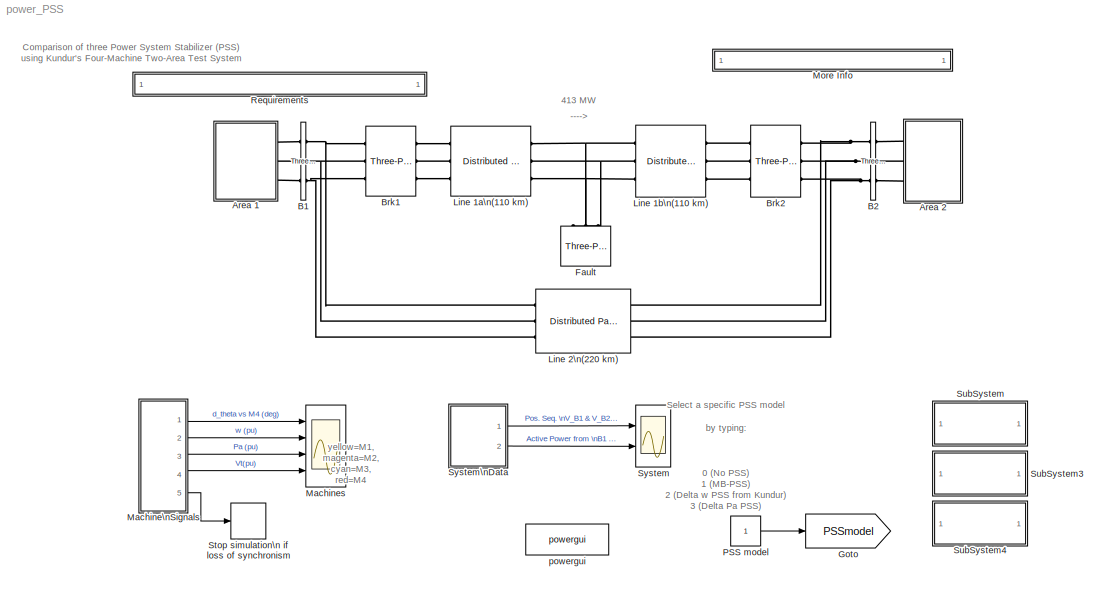
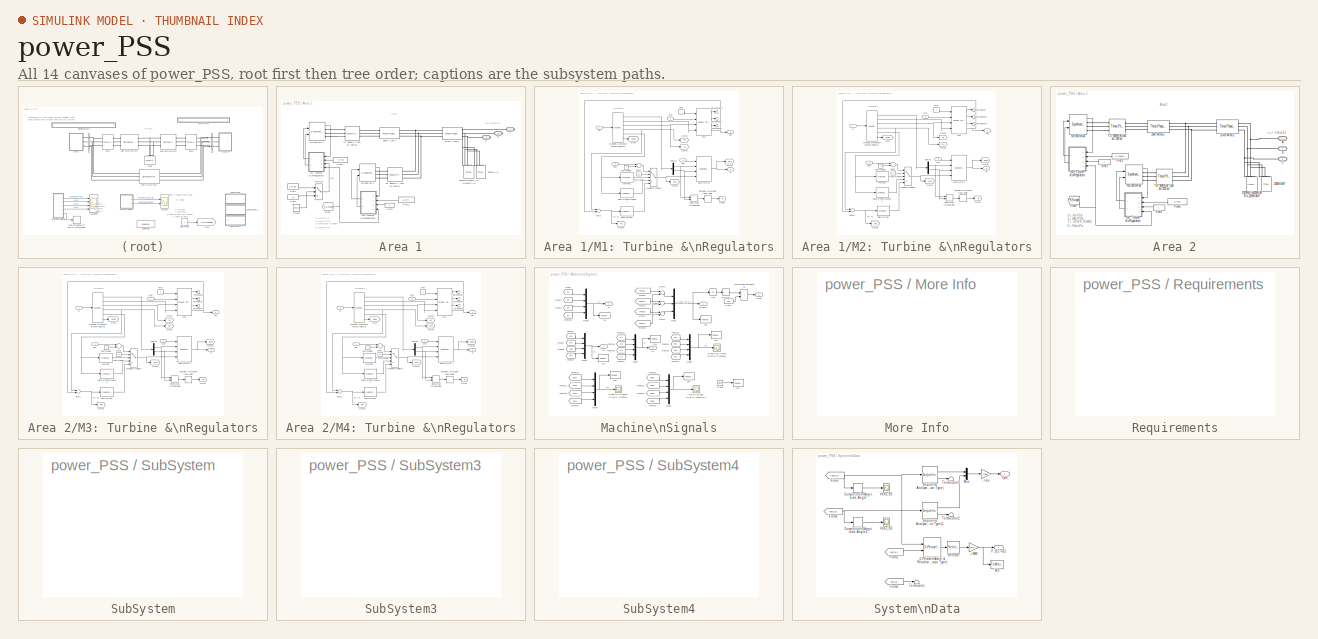
[diagram: thumbnail index - all 14 canvases of the model, root first then tree order]
MODEL power_PSS
KIND model
BLOCK [Reference]  Brk2  REF=powerlib/Elements/Three-Phase Breaker
  AttributesFormatString = \\n
  BreakerResistance = 0.001
  External = off
  InitialState = closed
  Measurements = None
  Ports = [0, 0, 0, 0, 0, 3, 3]
  ShowPortLabels = on
  SnubberCapacitance = 0
  SnubberResistance = 1e6
  SourceBlock = powerlib/Elements/Three-Phase Breaker
  SourceType = Three-Phase Breaker
  SwitchA = on
  SwitchB = on
  SwitchC = on
  SwitchTimes = [1+8/60]
BLOCK [SubSystem] Area 1
  MinAlgLoopOccurrences = off
  Ports = [0, 0, 0, 0, 0, 0, 3]
  RTWSystemCode = Auto
  TreatAsAtomicUnit = off
BLOCK [PMIOPort] Area 1/ A
  Port = 1
  Side = Right
BLOCK [PMIOPort] Area 1/ B
  Port = 2
  Side = Right
BLOCK [PMIOPort] Area 1/ C
  Port = 3
  Side = Right
BLOCK [Reference] Area 1/-200MVAR  REF=powerlib/Elements/Three-Phase\nParallel RLC Load
  ActivePower = 0
  AttributesFormatString = \\n
  CapacitivePower = 200e6
  Configuration = Y (grounded)
  InductivePower = 0
  LConnTagsString = A|B|C
  LeftPortType = p1
  Measurements = None
  NominalFrequency = 60
  NominalVoltage = 230e3
  PhysicalDomain = powersysdomain
  Ports = [0, 0, 0, 0, 0, 3]
  RightPortType = p1
  SourceBlock = powerlib/Elements/Three-Phase\nParallel RLC Load
  SourceType = Three-Phase Parallel RLC Load
  SubClassName = unknown
BLOCK [Reference] Area 1/10 km Area 1  REF=powerlib/Elements/Three-Phase\nPI Section Line
  AttributesFormatString = \\n
  Capacitances = [0.00175/529/(377) 5.2489e-9]
  Frequency = 60
  Inductances = [0.001*529/(377) 0.0061]
  LConnTagsString = a|b|c
  LeftPortType = p1
  Length = 10
  PhysicalDomain = powersysdomain
  Ports = [0, 0, 0, 0, 0, 3, 3]
  RConnTagsString = A|B|C
  Resistances = [0.0001*529 1.61]
  RightPortType = p1
  SourceBlock = powerlib/Elements/Three-Phase\nPI Section Line
  SourceType = Three-Phase PI Section Line
  SubClassName = unknown
BLOCK [Reference] Area 1/25km Area 1  REF=powerlib/Elements/Three-Phase\nPI Section Line
  AttributesFormatString = \\n
  Capacitances = [0.00175/529/(377) 5.2489e-9]
  Frequency = 60
  Inductances = [0.001*529/(377) 0.0061]
  LConnTagsString = a|b|c
  LeftPortType = p1
  Length = 25
  PhysicalDomain = powersysdomain
  Ports = [0, 0, 0, 0, 0, 3, 3]
  RConnTagsString = A|B|C
  Resistances = [0.0001*529 1.61]
  RightPortType = p1
  SourceBlock = powerlib/Elements/Three-Phase\nPI Section Line
  SourceType = Three-Phase PI Section Line
  SubClassName = unknown
BLOCK [Reference] Area 1/967MW\n100MVAR\n-187MVAR  REF=powerlib/Elements/Three-Phase\nParallel RLC Load
  ActivePower = 967e6
  AttributesFormatString = \\n
  CapacitivePower = 187e6
  Configuration = Y (grounded)
  InductivePower = 100e6
  LConnTagsString = A|B|C
  LeftPortType = p1
  Measurements = None
  NominalFrequency = 60
  NominalVoltage = 230e3
  PhysicalDomain = powersysdomain
  Ports = [0, 0, 0, 0, 0, 3]
  RightPortType = p1
  SourceBlock = powerlib/Elements/Three-Phase\nParallel RLC Load
  SourceType = Three-Phase Parallel RLC Load
  SubClassName = unknown
BLOCK [From] Area 1/From
  CloseFcn = tagdialog Close
  DialogController = Simulink.DDGSource
  GotoTag = PSSmodel
BLOCK [Reference] Area 1/M1 900 MVA  REF=powerlib/Machines/Synchronous Machine\npu Standard
  AttributesFormatString = \\n\\n
  InitialConditions = [0 -31.4247 0.784453 0.784453 0.784453 2.7401 -117.26 122.74 1.83395]
  LoadFlowParameters = [1 700000000 0 0 0]
  Mechanical = [ 6.5 0  4]
  NominalParameters = [900E6  20000   60 ]
  Ports = [2, 1, 0, 0, 0, 0, 3]
  PresetModel = No
  Reactances1 = [1.8 .3 .25 1.7 .55 .25 .2]
  Reactances2 = [ 1.305, 0.296, 0.252, 0.474, 0.243, 0.18 ]
  RotorType = Round
  Saturation = [0.6404,0.7127,0.8441,0.9214,0.9956,1.082,1.19,1.316,1.457;0.7,0.7698,0.8872,0.9466,0.9969,1.046,1.1,1.151,1.201]
  SetSaturation = off
  ShowDetailedParameters = on
  ShowPortLabels = on
  SourceBlock = powerlib/Machines/Synchronous Machine\npu Standard
  SourceType = Synchronous Machine
  StatorResistance = 0.0025
  TimeConstants1 = []
  TimeConstants2 = [8 .03 .4 .05]
  TimeConstants3 = []
  TimeConstants4 = []
  TimeConstants5 = [ 1.01, 0.053, 0.1 ]
  TimeConstants6 = []
  TimeConstants7 = []
  TimeConstants8 = []
  Units = 0.5
  dAxisTimeConstants = Open-circuit
  qAxisTimeConstants = Open-circuit
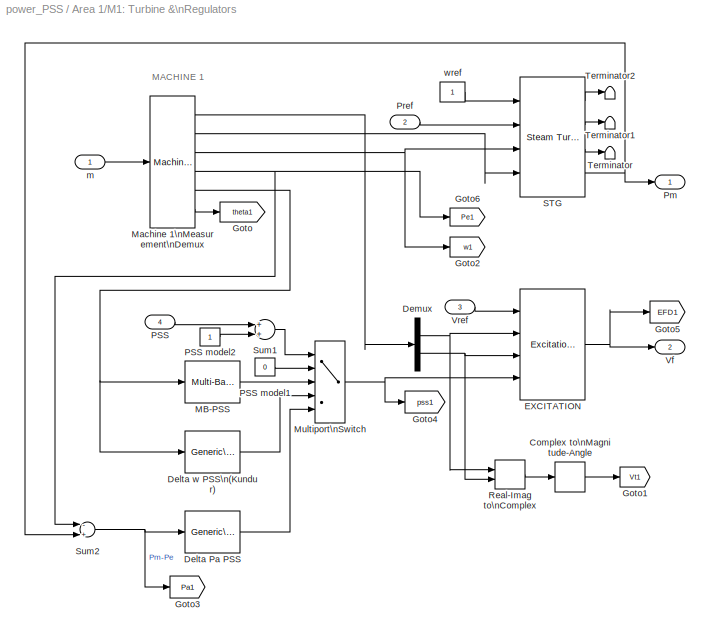
BLOCK [SubSystem] Area 1/M1: Turbine &\nRegulators
  MinAlgLoopOccurrences = off
  Ports = [4, 2]
  RTWSystemCode = Auto
  TreatAsAtomicUnit = off
BLOCK [ComplexToMagnitudeAngle] Area 1/M1: Turbine &\nRegulators/Complex to\nMagnitude-Angle
  Output = Magnitude
  Ports = [1, 1]
BLOCK [Reference] Area 1/M1: Turbine &\nRegulators/Delta Pa PSS   REF=powerlib/Machines/Generic\nPower System Stabilizer
  FreqRange = logspace(-2,2,500)
  K = 2.5*1.25
  MagdB_On = off
  Plot_On = off
  Ports = [1, 1]
  ShowPortLabels = on
  SourceBlock = powerlib/Machines/Generic\nPower System Stabilizer
  SourceType = Generic Power System Stabilizer
  Tleadlag1 = [60e-3 1]
  Tleadlag2 = [0 0]
  Tsensor = 15e-3
  Twashout = 1
  VSlimits = [-0.15 0.15]
  Vinit = 0
BLOCK [Reference] Area 1/M1: Turbine &\nRegulators/Delta w PSS\n(Kundur)   REF=powerlib/Machines/Generic\nPower System Stabilizer
  FreqRange = logspace(-2,2,500)
  K = 30
  MagdB_On = off
  Plot_On = off
  Ports = [1, 1]
  ShowPortLabels = on
  SourceBlock = powerlib/Machines/Generic\nPower System Stabilizer
  SourceType = Generic Power System Stabilizer
  Tleadlag1 = [50e-3 20e-3]
  Tleadlag2 = [3 5.4]
  Tsensor = 15e-3
  Twashout = 10
  VSlimits = [-0.15 0.15]
  Vinit = 0
BLOCK [Demux] Area 1/M1: Turbine &\nRegulators/Demux
  Outputs = 2
  Ports = [1, 2]
BLOCK [Reference] Area 1/M1: Turbine &\nRegulators/EXCITATION  REF=powerlib/Machines/Excitation\nSystem
  Ports = [4, 1]
  ShowPortLabels = on
  SourceBlock = powerlib/Machines/Excitation\nSystem
  SourceType = Excitation System
  damp = [ 0, 0 ]
  exc = [ 1, 0 ]
  lim = [ 0 , 12.3, 0 ]
  reg = [ 200, 0.001 ]
  sat = [ 0, 0 ]
  tgr = [ 0, 0 ]
  tr = 20e-3
  v0 = [1,1.83395]
BLOCK [Goto] Area 1/M1: Turbine &\nRegulators/Goto
  DialogController = Simulink.DDGSource
  GotoTag = theta1
  TagVisibility = global
BLOCK [Goto] Area 1/M1: Turbine &\nRegulators/Goto1
  DialogController = Simulink.DDGSource
  GotoTag = Vt1
  TagVisibility = global
BLOCK [Goto] Area 1/M1: Turbine &\nRegulators/Goto2
  DialogController = Simulink.DDGSource
  GotoTag = w1
  TagVisibility = global
BLOCK [Goto] Area 1/M1: Turbine &\nRegulators/Goto3
  DialogController = Simulink.DDGSource
  GotoTag = Pa1
  TagVisibility = global
BLOCK [Goto] Area 1/M1: Turbine &\nRegulators/Goto4
  DialogController = Simulink.DDGSource
  GotoTag = pss1
  TagVisibility = global
BLOCK [Goto] Area 1/M1: Turbine &\nRegulators/Goto5
  DialogController = Simulink.DDGSource
  GotoTag = EFD1
  TagVisibility = global
BLOCK [Goto] Area 1/M1: Turbine &\nRegulators/Goto6
  DialogController = Simulink.DDGSource
  GotoTag = Pe1
  TagVisibility = global
BLOCK [Reference] Area 1/M1: Turbine &\nRegulators/MB-PSS   REF=powerlib/Machines/Multi-Band\nPower System Stabilizer
  FreqRange = logspace(-2,2,500)
  GH = [12.0 160]
  GHd = [66 66 233]
  GI = [1.25 40]
  GId = [66 66 47.6]
  GL = [0.2 30]
  GLd = [66 66 9.4]
  Kg = 1.0
  LIM = [.075 .15 .15 .15]
  MagdB_On = off
  OperationMode = Simplified settings
  Plot_On = off
  Ports = [1, 1]
  ShowPortLabels = on
  SourceBlock = powerlib/Machines/Multi-Band\nPower System Stabilizer
  SourceType = Multi-Band Power System Stabilizer
  TcHF = [0.01 0.012 0 0 0 0  0.012 0.0144 0 0 0 0 1 1]
  TcIF = [1 1 0.25 0.3 0 0 1 1 0.3 0.36 0 0 0 0]
  TcLF = [1.667 2 0 0 0 0 2 2.4 0 0 0 0 1 1]
BLOCK [Reference] Area 1/M1: Turbine &\nRegulators/Machine 1\nMeasurement\nDemux  REF=powerlib/Machines/Machines\nMeasurement\nDemux
  Ports = [1, 6]
  ShowPortLabels = on
  SourceBlock = powerlib/Machines/Machines\nMeasurement\nDemux
  SourceType = Machine measurements
  asm1 = on
  asm10 = on
  asm11 = on
  asm2 = on
  asm3 = on
  asm4 = on
  asm5 = on
  asm6 = on
  asm7 = on
  asm8 = on
  asm9 = on
  lastType = 2
  machType = Synchronous
  pmsm1 = on
  pmsm2 = on
  pmsm3 = on
  pmsm4 = on
  pmsm5 = on
  pmsm6 = on
  sm1 = off
  sm10 = on
  sm11 = on
  sm115 = off
  sm12 = off
  sm13 = off
  sm14 = off
  sm2 = off
  sm3 = off
  sm4 = off
  sm5 = off
  sm6 = on
  sm7 = on
  sm8 = on
  sm9 = on
  ssm1 = on
  ssm2 = on
  ssm3 = on
  ssm4 = on
  ssm5 = on
  ssm6 = on
BLOCK [MultiPortSwitch] Area 1/M1: Turbine &\nRegulators/Multiport\nSwitch
  Ports = [5, 1]
  SaturateOnIntegerOverflow = off
BLOCK [Inport] Area 1/M1: Turbine &\nRegulators/PSS
  IconDisplay = Port number
  LatchInput = off
  Port = 4
BLOCK [Constant] Area 1/M1: Turbine &\nRegulators/PSS model1
  Value = 0
BLOCK [Constant] Area 1/M1: Turbine &\nRegulators/PSS model2
BLOCK [Outport] Area 1/M1: Turbine &\nRegulators/Pm
  IconDisplay = Port number
  InitialOutput = 0
BLOCK [Inport] Area 1/M1: Turbine &\nRegulators/Pref
  IconDisplay = Port number
  LatchInput = off
  Port = 2
BLOCK [RealImagToComplex] Area 1/M1: Turbine &\nRegulators/Real-Imag to\nComplex
  Input = Real and imag
  Ports = [2, 1]
BLOCK [Reference] Area 1/M1: Turbine &\nRegulators/STG  REF=powerlib/Machines/Steam Turbine\nand Governor
  DA = [ 0.0115  0.3575  0.3663   0.0137  ]
  HA = [ 0.046  1.430  1.465   0.192 ]
  KA = [ 90.44  53.88  64.59   62.94  ]
  Ports = [4, 4]
  ShowPortLabels = on
  SourceBlock = powerlib/Machines/Steam Turbine\nand Governor
  SourceType = Steam Turbine and Governor
  gentype = Tandem-compound (single mass)
  ini1 = 0.7778
  ini2 = [0.779316,-31.4247]
  reg1 = [ 1  0.05    0 ]
  reg2 = [ 0.001  0.15 ]
  reg3 = [ -0.1  0.1  0  4.496 ]
  turb1 = [ 0  10   3.3   0.5   ]
  turb2 = [   0   0.36    0.36   0.28   ]
BLOCK [Sum] Area 1/M1: Turbine &\nRegulators/Sum1
  Ports = [2, 1]
BLOCK [Sum] Area 1/M1: Turbine &\nRegulators/Sum2
  Inputs = -+
  Ports = [2, 1]
BLOCK [Terminator] Area 1/M1: Turbine &\nRegulators/Terminator
BLOCK [Terminator] Area 1/M1: Turbine &\nRegulators/Terminator1
BLOCK [Terminator] Area 1/M1: Turbine &\nRegulators/Terminator2
BLOCK [Outport] Area 1/M1: Turbine &\nRegulators/Vf
  IconDisplay = Port number
  InitialOutput = 0
  Port = 2
BLOCK [Inport] Area 1/M1: Turbine &\nRegulators/Vref
  IconDisplay = Port number
  LatchInput = off
  Port = 3
BLOCK [Inport] Area 1/M1: Turbine &\nRegulators/m
  IconDisplay = Port number
  LatchInput = off
  Port = 1
BLOCK [Constant] Area 1/M1: Turbine &\nRegulators/wref
BLOCK [Reference] Area 1/M2 900 MVA  REF=powerlib/Machines/Synchronous Machine\npu Standard
  AttributesFormatString = \\n\\n
  InitialConditions = [0 -42.8075 0.788608 0.788608 0.788608 -9.54571 -129.546 110.454 1.86756]
  LoadFlowParameters = [2 700000000 0 0 0]
  Mechanical = [ 6.5 0  4]
  NominalParameters = [900E6  20000   60 ]
  Ports = [2, 1, 0, 0, 0, 0, 3]
  PresetModel = No
  Reactances1 = [1.8 .3 .25 1.7 .55 .25 .2]
  Reactances2 = [ 1.305, 0.296, 0.252, 0.474, 0.243, 0.18 ]
  RotorType = Round
  Saturation = [0.6404,0.7127,0.8441,0.9214,0.9956,1.082,1.19,1.316,1.457;0.7,0.7698,0.8872,0.9466,0.9969,1.046,1.1,1.151,1.201]
  SetSaturation = off
  ShowDetailedParameters = on
  ShowPortLabels = on
  SourceBlock = powerlib/Machines/Synchronous Machine\npu Standard
  SourceType = Synchronous Machine
  StatorResistance = 0.0025
  TimeConstants1 = []
  TimeConstants2 = [8 .03 .4 .05]
  TimeConstants3 = []
  TimeConstants4 = []
  TimeConstants5 = [ 1.01, 0.053, 0.1 ]
  TimeConstants6 = []
  TimeConstants7 = []
  TimeConstants8 = []
  Units = 0.5
  dAxisTimeConstants = Open-circuit
  qAxisTimeConstants = Open-circuit
BLOCK [SubSystem] Area 1/M2: Turbine &\nRegulators
  MinAlgLoopOccurrences = off
  Ports = [4, 2]
  RTWSystemCode = Auto
  TreatAsAtomicUnit = off
BLOCK [ComplexToMagnitudeAngle] Area 1/M2: Turbine &\nRegulators/Complex to\nMagnitude-Angle
  Output = Magnitude
  Ports = [1, 1]
BLOCK [Reference] Area 1/M2: Turbine &\nRegulators/Delta Pa PSS   REF=powerlib/Machines/Generic\nPower System Stabilizer
  FreqRange = logspace(-2,2,500)
  K = 2.5*1.25
  MagdB_On = on
  Plot_On = off
  Ports = [1, 1]
  ShowPortLabels = on
  SourceBlock = powerlib/Machines/Generic\nPower System Stabilizer
  SourceType = Generic Power System Stabilizer
  Tleadlag1 = [60e-3 1]
  Tleadlag2 = [0 0]
  Tsensor = 15e-3
  Twashout = 1
  VSlimits = [-0.15 0.15]
  Vinit = 0
BLOCK [Reference] Area 1/M2: Turbine &\nRegulators/Delta w PSS\n(Kundur)   REF=powerlib/Machines/Generic\nPower System Stabilizer
  FreqRange = logspace(-2,2,500)
  K = 30
  MagdB_On = on
  Plot_On = off
  Ports = [1, 1]
  ShowPortLabels = on
  SourceBlock = powerlib/Machines/Generic\nPower System Stabilizer
  SourceType = Generic Power System Stabilizer
  Tleadlag1 = [50e-3 20e-3]
  Tleadlag2 = [3 5.4]
  Tsensor = 15e-3
  Twashout = 10
  VSlimits = [-0.15 0.15]
  Vinit = 0
BLOCK [Demux] Area 1/M2: Turbine &\nRegulators/Demux
  Outputs = 2
  Ports = [1, 2]
BLOCK [Reference] Area 1/M2: Turbine &\nRegulators/EXCITATION  REF=powerlib/Machines/Excitation\nSystem
  Ports = [4, 1]
  ShowPortLabels = on
  SourceBlock = powerlib/Machines/Excitation\nSystem
  SourceType = Excitation System
  damp = [ 0, 0 ]
  exc = [ 1, 0 ]
  lim = [ 0 , 12.3, 0 ]
  reg = [ 200, 0.001 ]
  sat = [ 0, 0 ]
  tgr = [ 0, 0 ]
  tr = 20e-3
  v0 = [1,1.86756]
BLOCK [Goto] Area 1/M2: Turbine &\nRegulators/Goto
  DialogController = Simulink.DDGSource
  GotoTag = theta2
  TagVisibility = global
BLOCK [Goto] Area 1/M2: Turbine &\nRegulators/Goto1
  DialogController = Simulink.DDGSource
  GotoTag = Vt2
  TagVisibility = global
BLOCK [Goto] Area 1/M2: Turbine &\nRegulators/Goto2
  DialogController = Simulink.DDGSource
  GotoTag = w2
  TagVisibility = global
BLOCK [Goto] Area 1/M2: Turbine &\nRegulators/Goto3
  DialogController = Simulink.DDGSource
  GotoTag = Pa2
  TagVisibility = global
BLOCK [Goto] Area 1/M2: Turbine &\nRegulators/Goto4
  DialogController = Simulink.DDGSource
  GotoTag = pss2
  TagVisibility = global
BLOCK [Goto] Area 1/M2: Turbine &\nRegulators/Goto5
  DialogController = Simulink.DDGSource
  GotoTag = EFD2
  TagVisibility = global
BLOCK [Goto] Area 1/M2: Turbine &\nRegulators/Goto6
  DialogController = Simulink.DDGSource
  GotoTag = Pe2
  TagVisibility = global
BLOCK [Reference] Area 1/M2: Turbine &\nRegulators/MB-PSS   REF=powerlib/Machines/Multi-Band\nPower System Stabilizer
  FreqRange = logspace(-2,2,500)
  GH = [12.0 160]
  GHd = [66 66 233]
  GI = [1.25 40]
  GId = [66 66 47.6]
  GL = [0.2 30]
  GLd = [66 66 9.4]
  Kg = 1.0
  LIM = [.075 .15 .15 .15]
  MagdB_On = off
  OperationMode = Simplified settings
  Plot_On = off
  Ports = [1, 1]
  ShowPortLabels = on
  SourceBlock = powerlib/Machines/Multi-Band\nPower System Stabilizer
  SourceType = Multi-Band Power System Stabilizer
  TcHF = [0.01 0.012 0 0 0 0  0.012 0.0144 0 0 0 0 1 1]
  TcIF = [1 1 0.25 0.3 0 0 1 1 0.3 0.36 0 0 0 0]
  TcLF = [1.667 2 0 0 0 0 2 2.4 0 0 0 0 1 1]
BLOCK [Reference] Area 1/M2: Turbine &\nRegulators/Machine 2\nMeasurement\nDemux  REF=powerlib/Machines/Machines\nMeasurement\nDemux
  Ports = [1, 6]
  ShowPortLabels = on
  SourceBlock = powerlib/Machines/Machines\nMeasurement\nDemux
  SourceType = Machine measurements
  asm1 = on
  asm10 = on
  asm11 = on
  asm2 = on
  asm3 = on
  asm4 = on
  asm5 = on
  asm6 = on
  asm7 = on
  asm8 = on
  asm9 = on
  lastType = 2
  machType = Synchronous
  pmsm1 = on
  pmsm2 = on
  pmsm3 = on
  pmsm4 = on
  pmsm5 = on
  pmsm6 = on
  sm1 = off
  sm10 = on
  sm11 = on
  sm115 = off
  sm12 = off
  sm13 = off
  sm14 = off
  sm2 = off
  sm3 = off
  sm4 = off
  sm5 = off
  sm6 = on
  sm7 = on
  sm8 = on
  sm9 = on
  ssm1 = on
  ssm2 = on
  ssm3 = on
  ssm4 = on
  ssm5 = on
  ssm6 = on
BLOCK [MultiPortSwitch] Area 1/M2: Turbine &\nRegulators/Multiport\nSwitch
  Ports = [5, 1]
  SaturateOnIntegerOverflow = off
BLOCK [Inport] Area 1/M2: Turbine &\nRegulators/PSS
  IconDisplay = Port number
  LatchInput = off
  Port = 4
BLOCK [Constant] Area 1/M2: Turbine &\nRegulators/PSS model1
  Value = 0
BLOCK [Constant] Area 1/M2: Turbine &\nRegulators/PSS model2
BLOCK [Outport] Area 1/M2: Turbine &\nRegulators/Pm
  IconDisplay = Port number
  InitialOutput = 0
BLOCK [Inport] Area 1/M2: Turbine &\nRegulators/Pref
  IconDisplay = Port number
  LatchInput = off
  Port = 2
BLOCK [RealImagToComplex] Area 1/M2: Turbine &\nRegulators/Real-Imag to\nComplex
  Input = Real and imag
  Ports = [2, 1]
BLOCK [Reference] Area 1/M2: Turbine &\nRegulators/STG  REF=powerlib/Machines/Steam Turbine\nand Governor
  DA = [ 0.0115  0.3575  0.3663   0.0137  ]
  HA = [ 0.046  1.430  1.465   0.192 ]
  KA = [ 90.44  53.88  64.59   62.94  ]
  Ports = [4, 4]
  ShowPortLabels = on
  SourceBlock = powerlib/Machines/Steam Turbine\nand Governor
  SourceType = Steam Turbine and Governor
  gentype = Tandem-compound (single mass)
  ini1 = 0.7777
  ini2 = [0.779243,-42.8075]
  reg1 = [ 1  0.05    0 ]
  reg2 = [ 0.001  0.15 ]
  reg3 = [ -0.1  0.1  0  4.496 ]
  turb1 = [ 0  10   3.3   0.5   ]
  turb2 = [   0   0.36    0.36   0.28   ]
BLOCK [Sum] Area 1/M2: Turbine &\nRegulators/Sum1
  Ports = [2, 1]
BLOCK [Sum] Area 1/M2: Turbine &\nRegulators/Sum2
  Inputs = -+
  Ports = [2, 1]
BLOCK [Terminator] Area 1/M2: Turbine &\nRegulators/Terminator
BLOCK [Terminator] Area 1/M2: Turbine &\nRegulators/Terminator1
BLOCK [Terminator] Area 1/M2: Turbine &\nRegulators/Terminator2
BLOCK [Outport] Area 1/M2: Turbine &\nRegulators/Vf
  IconDisplay = Port number
  InitialOutput = 0
  Port = 2
BLOCK [Inport] Area 1/M2: Turbine &\nRegulators/Vref
  IconDisplay = Port number
  LatchInput = off
  Port = 3
BLOCK [Inport] Area 1/M2: Turbine &\nRegulators/m
  IconDisplay = Port number
  LatchInput = off
  Port = 1
BLOCK [Constant] Area 1/M2: Turbine &\nRegulators/wref
BLOCK [Constant] Area 1/Pref1
  Value = 0.7778
BLOCK [Constant] Area 1/Pref2
  Value = 0.7777
BLOCK [Switch] Area 1/Switch
  SaturateOnIntegerOverflow = off
  Threshold = 1
BLOCK [Reference] Area 1/T1: 900MVA\n20 kV-230 kV  REF=powerlib/Elements/Three-Phase\nTransformer\n(Two Windings)
  AttributesFormatString = \\n
  DataFile = 'hysteresis'
  Hysteresis = off
  InitialFluxes = [ 0.8 , -0.8 , 0.7 ]
  Lm = 500
  Measurements = None
  NominalPower = [ 900e6   60 ]
  Ports = [0, 0, 0, 0, 0, 3, 3]
  Rm = 500
  Saturation = [ 0,0  ;  0.005,1.2  ;  1.0,1.4 ]
  SetInitialFlux = off
  SetSaturation = off
  ShowPortLabels = on
  SourceBlock = powerlib/Elements/Three-Phase\nTransformer\n(Two Windings)
  SourceType = Three-Phase Transformer (Two Windings)
  TransfoNumber = 0
  Winding1 = [ 20e3  1e-6   0  ]
  Winding1Connection = Delta (D1)
  Winding2 = [ 230e3  1e-6   0.15 ]
  Winding2Connection = Yg
BLOCK [Reference] Area 1/T2: 900MVA \n20 kV//230 kV  REF=powerlib/Elements/Three-Phase\nTransformer\n(Two Windings)
  AttributesFormatString = \\n
  DataFile = 'hysteresis'
  Hysteresis = off
  InitialFluxes = [ 0.8 , -0.8 , 0.7 ]
  Lm = 500
  Measurements = None
  NominalPower = [ 900e6 60 ]
  Ports = [0, 0, 0, 0, 0, 3, 3]
  Rm = 500
  Saturation = [ 0,0  ;  0.005,1.2  ;  1.0,1.4 ]
  SetInitialFlux = off
  SetSaturation = off
  ShowPortLabels = on
  SourceBlock = powerlib/Elements/Three-Phase\nTransformer\n(Two Windings)
  SourceType = Three-Phase Transformer (Two Windings)
  TransfoNumber = 0
  Winding1 = [ 20e3 1e-6  0.0]
  Winding1Connection = Delta (D1)
  Winding2 = [ 230e3 1e-6 0.15]
  Winding2Connection = Yg
BLOCK [Reference] Area 1/Timer  REF=powerlib_extras/Control \nBlocks/Timer
  Ports = [0, 1]
  ShowPortLabels = on
  SourceBlock = powerlib_extras/Control \nBlocks/Timer
  SourceType = Timer
  e = [0 1 0 ]
  t = [0 1 1.2]*100
BLOCK [Constant] Area 1/Vref1
  Value = 1.0
BLOCK [Constant] Area 1/Vref1 
  Value = 1.0+.05
BLOCK [Constant] Area 1/Vref2
BLOCK [SubSystem] Area 2
  MinAlgLoopOccurrences = off
  Ports = [0, 0, 0, 0, 0, 3]
  RTWSystemCode = Auto
  TreatAsAtomicUnit = off
BLOCK [Reference] Area 2/-350MVAR  REF=powerlib/Elements/Three-Phase\nParallel RLC Load
  ActivePower = 0
  AttributesFormatString = \\n
  CapacitivePower = 350e6
  Configuration = Y (grounded)
  InductivePower = 0
  LConnTagsString = A|B|C
  LeftPortType = p1
  Measurements = None
  NominalFrequency = 60
  NominalVoltage = 230e3
  PhysicalDomain = powersysdomain
  Ports = [0, 0, 0, 0, 0, 3]
  RightPortType = p1
  SourceBlock = powerlib/Elements/Three-Phase\nParallel RLC Load
  SourceType = Three-Phase Parallel RLC Load
  SubClassName = unknown
BLOCK [Reference] Area 2/10 km Area 2  REF=powerlib/Elements/Three-Phase\nPI Section Line
  AttributesFormatString = \\n
  Capacitances = [0.00175/529/(377) 5.2489e-9]
  Frequency = 60
  Inductances = [0.001*529/(377) 0.0061]
  LConnTagsString = a|b|c
  LeftPortType = p1
  Length = 10
  PhysicalDomain = powersysdomain
  Ports = [0, 0, 0, 0, 0, 3, 3]
  RConnTagsString = A|B|C
  Resistances = [0.0001*529 1.61]
  RightPortType = p1
  SourceBlock = powerlib/Elements/Three-Phase\nPI Section Line
  SourceType = Three-Phase PI Section Line
  SubClassName = unknown
BLOCK [Reference] Area 2/1767MW\n100MVAR\n-187MVAR  REF=powerlib/Elements/Three-Phase\nParallel RLC Load
  ActivePower = 1767e6
  AttributesFormatString = \\n
  CapacitivePower = 187e6
  Configuration = Y (grounded)
  InductivePower = 100e6
  LConnTagsString = A|B|C
  LeftPortType = p1
  Measurements = None
  NominalFrequency = 60
  NominalVoltage = 230e3
  PhysicalDomain = powersysdomain
  Ports = [0, 0, 0, 0, 0, 3]
  RightPortType = p1
  SourceBlock = powerlib/Elements/Three-Phase\nParallel RLC Load
  SourceType = Three-Phase Parallel RLC Load
  SubClassName = unknown
BLOCK [Reference] Area 2/25km Area 2  REF=powerlib/Elements/Three-Phase\nPI Section Line
  AttributesFormatString = \\n
  Capacitances = [0.00175/529/(377) 5.2489e-9]
  Frequency = 60
  Inductances = [0.001*529/(377) 0.0061]
  LConnTagsString = a|b|c
  LeftPortType = p1
  Length = 25
  PhysicalDomain = powersysdomain
  Ports = [0, 0, 0, 0, 0, 3, 3]
  RConnTagsString = A|B|C
  Resistances = [0.0001*529 1.61]
  RightPortType = p1
  SourceBlock = powerlib/Elements/Three-Phase\nPI Section Line
  SourceType = Three-Phase PI Section Line
  SubClassName = unknown
BLOCK [PMIOPort] Area 2/A
  Port = 1
  Side = Left
BLOCK [PMIOPort] Area 2/B
  Port = 2
  Side = Left
BLOCK [PMIOPort] Area 2/C
  Port = 3
  Side = Left
BLOCK [From] Area 2/From
  CloseFcn = tagdialog Close
  DialogController = Simulink.DDGSource
  GotoTag = PSSmodel
BLOCK [Reference] Area 2/M3 900 MVA  REF=powerlib/Machines/Synchronous Machine\npu Standard
  AttributesFormatString = \\n\\n
  InitialConditions = [0 -56.3243 0.8041 0.8041 0.8041 -22.4087 -142.409 97.5913 1.85092]
  LoadFlowParameters = [1 719000000 0 0 0]
  Mechanical = [ 6.175 0  4]
  NominalParameters = [900E6  20000   60 ]
  Ports = [2, 1, 0, 0, 0, 0, 3]
  PresetModel = No
  Reactances1 = [1.8 .3 .25 1.7 .55 .25 .2]
  Reactances2 = [ 1.305, 0.296, 0.252, 0.474, 0.243, 0.18 ]
  RotorType = Round
  Saturation = [0.6404,0.7127,0.8441,0.9214,0.9956,1.082,1.19,1.316,1.457;0.7,0.7698,0.8872,0.9466,0.9969,1.046,1.1,1.151,1.201]
  SetSaturation = off
  ShowDetailedParameters = on
  ShowPortLabels = on
  SourceBlock = powerlib/Machines/Synchronous Machine\npu Standard
  SourceType = Synchronous Machine
  StatorResistance = 0.0025
  TimeConstants1 = []
  TimeConstants2 = [8 .03 .4 .05]
  TimeConstants3 = []
  TimeConstants4 = []
  TimeConstants5 = [ 1.01, 0.053, 0.1 ]
  TimeConstants6 = []
  TimeConstants7 = []
  TimeConstants8 = []
  Units = 0.5
  dAxisTimeConstants = Open-circuit
  qAxisTimeConstants = Open-circuit
BLOCK [SubSystem] Area 2/M3: Turbine &\nRegulators
  MinAlgLoopOccurrences = off
  Ports = [4, 2]
  RTWSystemCode = Auto
  TreatAsAtomicUnit = off
BLOCK [ComplexToMagnitudeAngle] Area 2/M3: Turbine &\nRegulators/Complex to\nMagnitude-Angle
  Output = Magnitude
  Ports = [1, 1]
BLOCK [Reference] Area 2/M3: Turbine &\nRegulators/Delta Pa PSS   REF=powerlib/Machines/Generic\nPower System Stabilizer
  FreqRange = logspace(-2,2,500)
  K = 2.5*1.25
  MagdB_On = on
  Plot_On = off
  Ports = [1, 1]
  ShowPortLabels = on
  SourceBlock = powerlib/Machines/Generic\nPower System Stabilizer
  SourceType = Generic Power System Stabilizer
  Tleadlag1 = [60e-3 1]
  Tleadlag2 = [0 0]
  Tsensor = 15e-3
  Twashout = 1
  VSlimits = [-0.15 0.15]
  Vinit = 0
BLOCK [Reference] Area 2/M3: Turbine &\nRegulators/Delta w PSS\n(Kundur)   REF=powerlib/Machines/Generic\nPower System Stabilizer
  FreqRange = logspace(-2,2,500)
  K = 30
  MagdB_On = on
  Plot_On = off
  Ports = [1, 1]
  ShowPortLabels = on
  SourceBlock = powerlib/Machines/Generic\nPower System Stabilizer
  SourceType = Generic Power System Stabilizer
  Tleadlag1 = [50e-3 20e-3]
  Tleadlag2 = [3 5.4]
  Tsensor = 15e-3
  Twashout = 10
  VSlimits = [-0.15 0.15]
  Vinit = 0
BLOCK [Demux] Area 2/M3: Turbine &\nRegulators/Demux
  Outputs = 2
  Ports = [1, 2]
BLOCK [Reference] Area 2/M3: Turbine &\nRegulators/EXCITATION  REF=powerlib/Machines/Excitation\nSystem
  Ports = [4, 1]
  ShowPortLabels = on
  SourceBlock = powerlib/Machines/Excitation\nSystem
  SourceType = Excitation System
  damp = [ 0, 0 ]
  exc = [ 1, 0 ]
  lim = [ 0 , 12.3, 0 ]
  reg = [ 200, 0.001 ]
  sat = [ 0, 0 ]
  tgr = [ 0, 0 ]
  tr = 20e-3
  v0 = [1,1.85092]
BLOCK [Goto] Area 2/M3: Turbine &\nRegulators/Goto
  DialogController = Simulink.DDGSource
  GotoTag = theta3
  TagVisibility = global
BLOCK [Goto] Area 2/M3: Turbine &\nRegulators/Goto1
  DialogController = Simulink.DDGSource
  GotoTag = Vt3
  TagVisibility = global
BLOCK [Goto] Area 2/M3: Turbine &\nRegulators/Goto2
  DialogController = Simulink.DDGSource
  GotoTag = w3
  TagVisibility = global
BLOCK [Goto] Area 2/M3: Turbine &\nRegulators/Goto3
  DialogController = Simulink.DDGSource
  GotoTag = Pa3
  TagVisibility = global
BLOCK [Goto] Area 2/M3: Turbine &\nRegulators/Goto4
  DialogController = Simulink.DDGSource
  GotoTag = pss3
  TagVisibility = global
BLOCK [Goto] Area 2/M3: Turbine &\nRegulators/Goto5
  DialogController = Simulink.DDGSource
  GotoTag = EFD3
  TagVisibility = global
BLOCK [Goto] Area 2/M3: Turbine &\nRegulators/Goto6
  DialogController = Simulink.DDGSource
  GotoTag = Pe3
  TagVisibility = global
BLOCK [Reference] Area 2/M3: Turbine &\nRegulators/MB-PSS   REF=powerlib/Machines/Multi-Band\nPower System Stabilizer
  FreqRange = logspace(-2,2,500)
  GH = [12.0 160]
  GHd = [66 66 233]
  GI = [1.25 40]
  GId = [66 66 47.6]
  GL = [0.2 30]
  GLd = [66 66 9.4]
  Kg = 1.0
  LIM = [.075 .15 .15 .15]
  MagdB_On = off
  OperationMode = Simplified settings
  Plot_On = off
  Ports = [1, 1]
  ShowPortLabels = on
  SourceBlock = powerlib/Machines/Multi-Band\nPower System Stabilizer
  SourceType = Multi-Band Power System Stabilizer
  TcHF = [0.01 0.012 0 0 0 0  0.012 0.0144 0 0 0 0 1 1]
  TcIF = [1 1 0.25 0.3 0 0 1 1 0.3 0.36 0 0 0 0]
  TcLF = [1.667 2 0 0 0 0 2 2.4 0 0 0 0 1 1]
BLOCK [Reference] Area 2/M3: Turbine &\nRegulators/Machine 3\nMeasurement\nDemux  REF=powerlib/Machines/Machines\nMeasurement\nDemux
  Ports = [1, 6]
  ShowPortLabels = on
  SourceBlock = powerlib/Machines/Machines\nMeasurement\nDemux
  SourceType = Machine measurements
  asm1 = on
  asm10 = on
  asm11 = on
  asm2 = on
  asm3 = on
  asm4 = on
  asm5 = on
  asm6 = on
  asm7 = on
  asm8 = on
  asm9 = on
  lastType = 2
  machType = Synchronous
  pmsm1 = on
  pmsm2 = on
  pmsm3 = on
  pmsm4 = on
  pmsm5 = on
  pmsm6 = on
  sm1 = off
  sm10 = on
  sm11 = on
  sm115 = off
  sm12 = off
  sm13 = off
  sm14 = off
  sm2 = off
  sm3 = off
  sm4 = off
  sm5 = off
  sm6 = on
  sm7 = on
  sm8 = on
  sm9 = on
  ssm1 = on
  ssm2 = on
  ssm3 = on
  ssm4 = on
  ssm5 = on
  ssm6 = on
BLOCK [MultiPortSwitch] Area 2/M3: Turbine &\nRegulators/Multiport\nSwitch
  Ports = [5, 1]
  SaturateOnIntegerOverflow = off
BLOCK [Inport] Area 2/M3: Turbine &\nRegulators/PSS
  IconDisplay = Port number
  LatchInput = off
  Port = 4
BLOCK [Constant] Area 2/M3: Turbine &\nRegulators/PSS model1
  Value = 0
BLOCK [Constant] Area 2/M3: Turbine &\nRegulators/PSS model2
BLOCK [Outport] Area 2/M3: Turbine &\nRegulators/Pm
  IconDisplay = Port number
  InitialOutput = 0
BLOCK [Inport] Area 2/M3: Turbine &\nRegulators/Pref
  IconDisplay = Port number
  LatchInput = off
  Port = 2
BLOCK [RealImagToComplex] Area 2/M3: Turbine &\nRegulators/Real-Imag to\nComplex
  Input = Real and imag
  Ports = [2, 1]
BLOCK [Reference] Area 2/M3: Turbine &\nRegulators/STG  REF=powerlib/Machines/Steam Turbine\nand Governor
  DA = [ 0.0115  0.3575  0.3663   0.0137  ]
  HA = [ 0.046  1.430  1.465   0.192 ]
  KA = [ 90.44  53.88  64.59   62.94  ]
  Ports = [4, 4]
  ShowPortLabels = on
  SourceBlock = powerlib/Machines/Steam Turbine\nand Governor
  SourceType = Steam Turbine and Governor
  gentype = Tandem-compound (single mass)
  ini1 = 0.798889
  ini2 = [0.800505,-56.3243]
  reg1 = [ 1  0.05    0 ]
  reg2 = [ 0.001  0.15 ]
  reg3 = [ -0.1  0.1  0  4.496 ]
  turb1 = [ 0  10   3.3   0.5   ]
  turb2 = [   0   0.36    0.36   0.28   ]
BLOCK [Sum] Area 2/M3: Turbine &\nRegulators/Sum1
  Ports = [2, 1]
BLOCK [Sum] Area 2/M3: Turbine &\nRegulators/Sum2
  Inputs = -+
  Ports = [2, 1]
BLOCK [Terminator] Area 2/M3: Turbine &\nRegulators/Terminator
BLOCK [Terminator] Area 2/M3: Turbine &\nRegulators/Terminator1
BLOCK [Terminator] Area 2/M3: Turbine &\nRegulators/Terminator2
BLOCK [Outport] Area 2/M3: Turbine &\nRegulators/Vf
  IconDisplay = Port number
  InitialOutput = 0
  Port = 2
BLOCK [Inport] Area 2/M3: Turbine &\nRegulators/Vref
  IconDisplay = Port number
  LatchInput = off
  Port = 3
BLOCK [Inport] Area 2/M3: Turbine &\nRegulators/m
  IconDisplay = Port number
  LatchInput = off
  Port = 1
BLOCK [Constant] Area 2/M3: Turbine &\nRegulators/wref
BLOCK [Reference] Area 2/M4 900 MVA  REF=powerlib/Machines/Synchronous Machine\npu Standard
  AttributesFormatString = \\n\\n
  InitialConditions = [0 -67.7513 0.783185 0.783185 0.783185 -33.268 -153.268 86.732 1.82209]
  LoadFlowParameters = [1 700000000 0 0 0]
  Mechanical = [ 6.175 0  4]
  NominalParameters = [900E6  20000   60 ]
  Ports = [2, 1, 0, 0, 0, 0, 3]
  PresetModel = No
  Reactances1 = [1.8 .3 .25 1.7 .55 .25 .2]
  Reactances2 = [ 1.305, 0.296, 0.252, 0.474, 0.243, 0.18 ]
  RotorType = Round
  Saturation = [0.6404,0.7127,0.8441,0.9214,0.9956,1.082,1.19,1.316,1.457;0.7,0.7698,0.8872,0.9466,0.9969,1.046,1.1,1.151,1.201]
  SetSaturation = off
  ShowDetailedParameters = on
  ShowPortLabels = on
  SourceBlock = powerlib/Machines/Synchronous Machine\npu Standard
  SourceType = Synchronous Machine
  StatorResistance = 0.0025
  TimeConstants1 = []
  TimeConstants2 = [8 .03 .4 .05]
  TimeConstants3 = []
  TimeConstants4 = []
  TimeConstants5 = [ 1.01, 0.053, 0.1 ]
  TimeConstants6 = []
  TimeConstants7 = []
  TimeConstants8 = []
  Units = 0.5
  dAxisTimeConstants = Open-circuit
  qAxisTimeConstants = Open-circuit
BLOCK [SubSystem] Area 2/M4: Turbine &\nRegulators
  MinAlgLoopOccurrences = off
  Ports = [4, 2]
  RTWSystemCode = Auto
  TreatAsAtomicUnit = off
BLOCK [ComplexToMagnitudeAngle] Area 2/M4: Turbine &\nRegulators/Complex to\nMagnitude-Angle
  Output = Magnitude
  Ports = [1, 1]
BLOCK [Reference] Area 2/M4: Turbine &\nRegulators/Delta Pa PSS   REF=powerlib/Machines/Generic\nPower System Stabilizer
  FreqRange = logspace(-2,2,500)
  K = 2.5*1.25
  MagdB_On = on
  Plot_On = off
  Ports = [1, 1]
  ShowPortLabels = on
  SourceBlock = powerlib/Machines/Generic\nPower System Stabilizer
  SourceType = Generic Power System Stabilizer
  Tleadlag1 = [60e-3 1]
  Tleadlag2 = [0 0]
  Tsensor = 15e-3
  Twashout = 1
  VSlimits = [-0.15 0.15]
  Vinit = 0
BLOCK [Reference] Area 2/M4: Turbine &\nRegulators/Delta w PSS\n(Kundur)   REF=powerlib/Machines/Generic\nPower System Stabilizer
  FreqRange = logspace(-2,2,500)
  K = 30
  MagdB_On = on
  Plot_On = off
  Ports = [1, 1]
  ShowPortLabels = on
  SourceBlock = powerlib/Machines/Generic\nPower System Stabilizer
  SourceType = Generic Power System Stabilizer
  Tleadlag1 = [50e-3 20e-3]
  Tleadlag2 = [3 5.4]
  Tsensor = 15e-3
  Twashout = 10
  VSlimits = [-0.15 0.15]
  Vinit = 0
BLOCK [Demux] Area 2/M4: Turbine &\nRegulators/Demux
  Outputs = 2
  Ports = [1, 2]
BLOCK [Reference] Area 2/M4: Turbine &\nRegulators/EXCITATION  REF=powerlib/Machines/Excitation\nSystem
  Ports = [4, 1]
  ShowPortLabels = on
  SourceBlock = powerlib/Machines/Excitation\nSystem
  SourceType = Excitation System
  damp = [ 0, 0 ]
  exc = [ 1, 0 ]
  lim = [ 0 , 12.3, 0 ]
  reg = [ 200, 0.001 ]
  sat = [ 0, 0 ]
  tgr = [ 0, 0 ]
  tr = 20e-3
  v0 = [1,1.82209]
BLOCK [Goto] Area 2/M4: Turbine &\nRegulators/Goto
  DialogController = Simulink.DDGSource
  GotoTag = theta4
  TagVisibility = global
BLOCK [Goto] Area 2/M4: Turbine &\nRegulators/Goto1
  DialogController = Simulink.DDGSource
  GotoTag = Vt4
  TagVisibility = global
BLOCK [Goto] Area 2/M4: Turbine &\nRegulators/Goto2
  DialogController = Simulink.DDGSource
  GotoTag = w4
  TagVisibility = global
BLOCK [Goto] Area 2/M4: Turbine &\nRegulators/Goto3
  DialogController = Simulink.DDGSource
  GotoTag = Pa4
  TagVisibility = global
BLOCK [Goto] Area 2/M4: Turbine &\nRegulators/Goto4
  DialogController = Simulink.DDGSource
  GotoTag = pss4
  TagVisibility = global
BLOCK [Goto] Area 2/M4: Turbine &\nRegulators/Goto5
  DialogController = Simulink.DDGSource
  GotoTag = EFD4
  TagVisibility = global
BLOCK [Goto] Area 2/M4: Turbine &\nRegulators/Goto6
  DialogController = Simulink.DDGSource
  GotoTag = Pe4
  TagVisibility = global
BLOCK [Reference] Area 2/M4: Turbine &\nRegulators/MB-PSS   REF=powerlib/Machines/Multi-Band\nPower System Stabilizer
  FreqRange = logspace(-2,2,500)
  GH = [12.0 160]
  GHd = [66 66 233]
  GI = [1.25 40]
  GId = [66 66 47.6]
  GL = [0.2 30]
  GLd = [66 66 9.4]
  Kg = 1.0
  LIM = [.075 .15 .15 .15]
  MagdB_On = off
  OperationMode = Simplified settings
  Plot_On = off
  Ports = [1, 1]
  ShowPortLabels = on
  SourceBlock = powerlib/Machines/Multi-Band\nPower System Stabilizer
  SourceType = Multi-Band Power System Stabilizer
  TcHF = [0.01 0.012 0 0 0 0  0.012 0.0144 0 0 0 0 1 1]
  TcIF = [1 1 0.25 0.3 0 0 1 1 0.3 0.36 0 0 0 0]
  TcLF = [1.667 2 0 0 0 0 2 2.4 0 0 0 0 1 1]
BLOCK [Reference] Area 2/M4: Turbine &\nRegulators/Machine 4\nMeasurement\nDemux  REF=powerlib/Machines/Machines\nMeasurement\nDemux
  Ports = [1, 6]
  ShowPortLabels = on
  SourceBlock = powerlib/Machines/Machines\nMeasurement\nDemux
  SourceType = Machine measurements
  asm1 = on
  asm10 = on
  asm11 = on
  asm2 = on
  asm3 = on
  asm4 = on
  asm5 = on
  asm6 = on
  asm7 = on
  asm8 = on
  asm9 = on
  lastType = 2
  machType = Synchronous
  pmsm1 = on
  pmsm2 = on
  pmsm3 = on
  pmsm4 = on
  pmsm5 = on
  pmsm6 = on
  sm1 = off
  sm10 = on
  sm11 = on
  sm115 = off
  sm12 = off
  sm13 = off
  sm14 = off
  sm2 = off
  sm3 = off
  sm4 = off
  sm5 = off
  sm6 = on
  sm7 = on
  sm8 = on
  sm9 = on
  ssm1 = on
  ssm2 = on
  ssm3 = on
  ssm4 = on
  ssm5 = on
  ssm6 = on
BLOCK [MultiPortSwitch] Area 2/M4: Turbine &\nRegulators/Multiport\nSwitch
  Ports = [5, 1]
  SaturateOnIntegerOverflow = off
BLOCK [Inport] Area 2/M4: Turbine &\nRegulators/PSS
  IconDisplay = Port number
  LatchInput = off
  Port = 4
BLOCK [Constant] Area 2/M4: Turbine &\nRegulators/PSS model1
  Value = 0
BLOCK [Constant] Area 2/M4: Turbine &\nRegulators/PSS model2
BLOCK [Outport] Area 2/M4: Turbine &\nRegulators/Pm
  IconDisplay = Port number
  InitialOutput = 0
BLOCK [Inport] Area 2/M4: Turbine &\nRegulators/Pref
  IconDisplay = Port number
  LatchInput = off
  Port = 2
BLOCK [RealImagToComplex] Area 2/M4: Turbine &\nRegulators/Real-Imag to\nComplex
  Input = Real and imag
  Ports = [2, 1]
BLOCK [Reference] Area 2/M4: Turbine &\nRegulators/STG  REF=powerlib/Machines/Steam Turbine\nand Governor
  DA = [ 0.0115  0.3575  0.3663   0.0137  ]
  HA = [ 0.046  1.430  1.465   0.192 ]
  KA = [ 90.44  53.88  64.59   62.94  ]
  Ports = [4, 4]
  ShowPortLabels = on
  SourceBlock = powerlib/Machines/Steam Turbine\nand Governor
  SourceType = Steam Turbine and Governor
  gentype = Tandem-compound (single mass)
  ini1 = 0.7778
  ini2 = [0.779311,-67.7513]
  reg1 = [ 1  0.05    0 ]
  reg2 = [ 0.001  0.15 ]
  reg3 = [ -0.1  0.1  0  4.496 ]
  turb1 = [ 0  10   3.3   0.5   ]
  turb2 = [   0   0.36    0.36   0.28   ]
BLOCK [Sum] Area 2/M4: Turbine &\nRegulators/Sum1
  Ports = [2, 1]
BLOCK [Sum] Area 2/M4: Turbine &\nRegulators/Sum2
  Inputs = -+
  Ports = [2, 1]
BLOCK [Terminator] Area 2/M4: Turbine &\nRegulators/Terminator
BLOCK [Terminator] Area 2/M4: Turbine &\nRegulators/Terminator1
BLOCK [Terminator] Area 2/M4: Turbine &\nRegulators/Terminator2
BLOCK [Outport] Area 2/M4: Turbine &\nRegulators/Vf
  IconDisplay = Port number
  InitialOutput = 0
  Port = 2
BLOCK [Inport] Area 2/M4: Turbine &\nRegulators/Vref
  IconDisplay = Port number
  LatchInput = off
  Port = 3
BLOCK [Inport] Area 2/M4: Turbine &\nRegulators/m
  IconDisplay = Port number
  LatchInput = off
  Port = 1
BLOCK [Constant] Area 2/M4: Turbine &\nRegulators/wref
BLOCK [Constant] Area 2/Pref3
  Value = 0.798889
BLOCK [Constant] Area 2/Pref4
  Value = 0.7778
BLOCK [Reference] Area 2/T3: 900MVA\n20 kV-230 kV  REF=powerlib/Elements/Three-Phase\nTransformer\n(Two Windings)
  AttributesFormatString = \\n
  DataFile = 'hysteresis'
  Hysteresis = off
  InitialFluxes = [ 0.8 , -0.8 , 0.7 ]
  Lm = 500
  Measurements = None
  NominalPower = [ 900e6   60 ]
  Ports = [0, 0, 0, 0, 0, 3, 3]
  Rm = 500
  Saturation = [ 0,0  ;  0.005,1.2  ;  1.0,1.4 ]
  SetInitialFlux = off
  SetSaturation = off
  ShowPortLabels = on
  SourceBlock = powerlib/Elements/Three-Phase\nTransformer\n(Two Windings)
  SourceType = Three-Phase Transformer (Two Windings)
  TransfoNumber = 0
  Winding1 = [ 20e3  1e-6   0  ]
  Winding1Connection = Delta (D1)
  Winding2 = [ 230e3  1e-6   0.15 ]
  Winding2Connection = Yg
BLOCK [Reference] Area 2/T4: 900MVA \n20 kV//230 kV  REF=powerlib/Elements/Three-Phase\nTransformer\n(Two Windings)
  AttributesFormatString = \\n
  DataFile = 'hysteresis'
  Hysteresis = off
  InitialFluxes = [ 0.8 , -0.8 , 0.7 ]
  Lm = 500
  Measurements = None
  NominalPower = [ 900e6 60 ]
  Ports = [0, 0, 0, 0, 0, 3, 3]
  Rm = 500
  Saturation = [ 0,0  ;  0.005,1.2  ;  1.0,1.4 ]
  SetInitialFlux = off
  SetSaturation = off
  ShowPortLabels = on
  SourceBlock = powerlib/Elements/Three-Phase\nTransformer\n(Two Windings)
  SourceType = Three-Phase Transformer (Two Windings)
  TransfoNumber = 0
  Winding1 = [ 20e3 1e-6  0.0]
  Winding1Connection = Delta (D1)
  Winding2 = [ 230e3 1e-6 0.15]
  Winding2Connection = Yg
BLOCK [Constant] Area 2/Vref3
BLOCK [Constant] Area 2/Vref4
BLOCK [Reference] B1  REF=powerlib/Measurements/Three-Phase\nV-I Measurement
  CurrentMeasurement = yes
  Ipu = off
  LabelI = Iabc_B1
  LabelV = Vabc_B1
  OutputType = Complex
  PSBequivalent = 0
  Pbase = 100e6
  PhasorSimulation = on
  Ports = [0, 0, 0, 0, 0, 3, 3]
  SetLabelI = on
  SetLabelV = on
  ShowPortLabels = on
  SourceBlock = powerlib/Measurements/Three-Phase\nV-I Measurement
  SourceType = Three-Phase VI Measurement
  Vbase = 500e3
  VoltageMeasurement = phase-to-ground
  Vpu = off
BLOCK [Reference] B2  REF=powerlib/Measurements/Three-Phase\nV-I Measurement
  CurrentMeasurement = yes
  Ipu = off
  LabelI = Iabc_B2
  LabelV = Vabc_B2
  OutputType = Complex
  PSBequivalent = 0
  Pbase = 100e6
  PhasorSimulation = on
  Ports = [0, 0, 0, 0, 0, 3, 3]
  SetLabelI = on
  SetLabelV = on
  ShowPortLabels = on
  SourceBlock = powerlib/Measurements/Three-Phase\nV-I Measurement
  SourceType = Three-Phase VI Measurement
  Vbase = 500e3
  VoltageMeasurement = phase-to-ground
  Vpu = off
BLOCK [Reference] Brk1  REF=powerlib/Elements/Three-Phase Breaker
  AttributesFormatString = \\n
  BreakerResistance = 0.001
  External = off
  InitialState = closed
  Measurements = None
  Ports = [0, 0, 0, 0, 0, 3, 3]
  ShowPortLabels = on
  SnubberCapacitance = 0
  SnubberResistance = inf
  SourceBlock = powerlib/Elements/Three-Phase Breaker
  SourceType = Three-Phase Breaker
  SwitchA = on
  SwitchB = on
  SwitchC = on
  SwitchTimes = [1+8/60]
BLOCK [Reference] Fault  REF=powerlib/Elements/Three-Phase Fault
  External = off
  FaultA = on
  FaultB = on
  FaultC = on
  FaultResistance = 0.001
  GroundFault = on
  GroundResistance = 0.001
  InitialStates = [0 0 1]
  Measurements = None
  Ports = [0, 0, 0, 0, 0, 3]
  ShowPortLabels = on
  SnubberCapacitance = 0
  SnubberResistance = inf
  SourceBlock = powerlib/Elements/Three-Phase Fault
  SourceType = Three-Phase Fault
  SwitchStatus = [1 0]
  SwitchTimes = [ 1 1+12/60]
BLOCK [Goto] Goto
  DialogController = Simulink.DDGSource
  GotoTag = PSSmodel
  TagVisibility = global
BLOCK [Reference] Line 1a\n(110 km)  REF=powerlib/Elements/Distributed Parameters Line
  AttributesFormatString = \\n
  Capacitance = [0.00175/529/(377) 5.2489e-9]
  Frequency = 60
  Inductance = [0.001*529/(377) 0.0061]
  Length = 110
  Measurements = None
  Phases = 3
  Ports = [0, 0, 0, 0, 0, 3, 3]
  Resistance = [0.0001*529 1.61]
  ShowPortLabels = on
  SourceBlock = powerlib/Elements/Distributed Parameters Line
  SourceType = Distributed Parameters Line
  x1 = [0 -1.08e-008 1.364e+005 -1.828e+005;0.0001245 -1.04e-008 1.448e+005 -1.762e+005;0.000249 -9.969e-009 1.529e+005 -1.692e+005;0.0003735 -9.519e-009 1.607e+005 -1.618e+005;0.0004979 -9.048e-009 1.681e+005 -1.541e+005;0.0006224 -8.557e-009 1.751e+005 -1.461e+005]
  x2 = [0 -8.707e-009 8.941e+004 -2.072e+005;0.0001245 -8.096e-009 9.903e+004 -2.027e+005;0.000249 -7.467e-009 1.084e+005 -1.979e+005;0.0003735 -6.821e-009 1.176e+005 -1.926e+005;0.0004979 -6.16e-009 1.265e+005 -1.868e+005;0.0006224 -5.486e-009 1.351e+005 -1.807e+005]
  x3 = [0 -1.712e-011 -188.2 278.4;0.0001245 -1.624e-011 -201 269.2;0.000249 -1.531e-011 -213.4 259.5;0.0003735 -1.435e-011 -225.4 249.2;0.0004979 -1.336e-011 -236.8 238.4;0.0006224 -1.234e-011 -247.8 227]
  x4 = [0 -1.348e-012 676.1 -1284;0.0001245 -1.525e-012 735.6 -1251;0.000249 -1.7e-012 793.5 -1215;0.0003735 -1.87e-012 849.6 -1176;0.0004979 -2.037e-012 903.8 -1135;0.0006224 -2.199e-012 956.1 -1091]
  x5 = 0.0006224
BLOCK [Reference] Line 1b\n(110 km)  REF=powerlib/Elements/Distributed Parameters Line
  AttributesFormatString = \\n
  Capacitance = [0.00175/529/(377) 5.2489e-9]
  Frequency = 60
  Inductance = [0.001*529/(377) 0.0061]
  Length = 110
  Measurements = None
  Phases = 3
  Ports = [0, 0, 0, 0, 0, 3, 3]
  Resistance = [0.0001*529 1.61]
  ShowPortLabels = on
  SourceBlock = powerlib/Elements/Distributed Parameters Line
  SourceType = Distributed Parameters Line
  x1 = [0 -8.707e-009 8.941e+004 -2.072e+005;0.0001245 -8.096e-009 9.903e+004 -2.027e+005;0.000249 -7.467e-009 1.084e+005 -1.979e+005;0.0003735 -6.821e-009 1.176e+005 -1.926e+005;0.0004979 -6.16e-009 1.265e+005 -1.868e+005;0.0006224 -5.486e-009 1.351e+005 -1.807e+005]
  x2 = [0 -6.602e-009 4.098e+004 -2.27e+005;0.0001245 -5.796e-009 5.158e+004 -2.248e+005;0.000249 -4.976e-009 6.207e+004 -2.221e+005;0.0003735 -4.146e-009 7.242e+004 -2.19e+005;0.0004979 -3.306e-009 8.262e+004 -2.153e+005;0.0006224 -2.459e-009 9.263e+004 -2.112e+005]
  x3 = [0 -1.532e-011 -233.8 258.9;0.0001245 -1.425e-011 -245.7 247.7;0.000249 -1.315e-011 -257 235.9;0.0003735 -1.203e-011 -267.8 223.6;0.0004979 -1.088e-011 -278 210.7;0.0006224 -9.699e-012 -287.6 197.5]
  x4 = [0 -3.575e-013 477.8 -1356;0.0001245 -3.081e-013 540.9 -1332;0.000249 -2.58e-013 602.8 -1306;0.0003735 -2.073e-013 663.4 -1276;0.0004979 -1.562e-013 722.5 -1243;0.0006224 -1.047e-013 780 -1208]
  x5 = 0.0006224
BLOCK [Reference] Line 2\n(220 km)  REF=powerlib/Elements/Distributed Parameters Line
  AttributesFormatString = \\n
  Capacitance = [0.00175/529/(377) 5.2489e-9]
  Frequency = 60
  Inductance = [0.001*529/(377) 0.0061]
  Length = 220
  Measurements = None
  Phases = 3
  Ports = [0, 0, 0, 0, 0, 3, 3]
  Resistance = [0.0001*529 1.61]
  ShowPortLabels = on
  SourceBlock = powerlib/Elements/Distributed Parameters Line
  SourceType = Distributed Parameters Line
  x1 = [0 -1.135e-008 1.084e+005 -2.006e+005;0.000249 -1.036e-008 1.268e+005 -1.896e+005;0.0004979 -9.29e-009 1.44e+005 -1.769e+005;0.0007469 -8.134e-009 1.599e+005 -1.626e+005;0.0009959 -6.906e-009 1.745e+005 -1.469e+005;0.001245 -5.617e-009 1.875e+005 -1.299e+005]
  x2 = [0 -8.979e-009 7634 -2.305e+005;0.000249 -7.841e-009 2.92e+004 -2.288e+005;0.0004979 -6.634e-009 5.052e+004 -2.25e+005;0.0007469 -5.368e-009 7.139e+004 -2.193e+005;0.0009959 -4.055e-009 9.163e+004 -2.117e+005;0.001245 -2.707e-009 1.111e+005 -2.021e+005]
  x3 = [0 -1.027e-011 -145.5 302.4;0.000249 -9.359e-012 -173.2 287.5;0.0004979 -8.367e-012 -199.4 270;0.0007469 -7.303e-012 -223.8 250.1;0.0009959 -6.174e-012 -246.3 228;0.001245 -4.99e-012 -266.6 203.9]
  x4 = [0 -8.487e-012 273.7 -1399;0.000249 -8.24e-012 403.7 -1367;0.0004979 -7.92e-012 530 -1323;0.0007469 -7.531e-012 651.7 -1268;0.0009959 -7.075e-012 767.7 -1201;0.001245 -6.557e-012 876.9 -1124]
  x5 = 0.001245
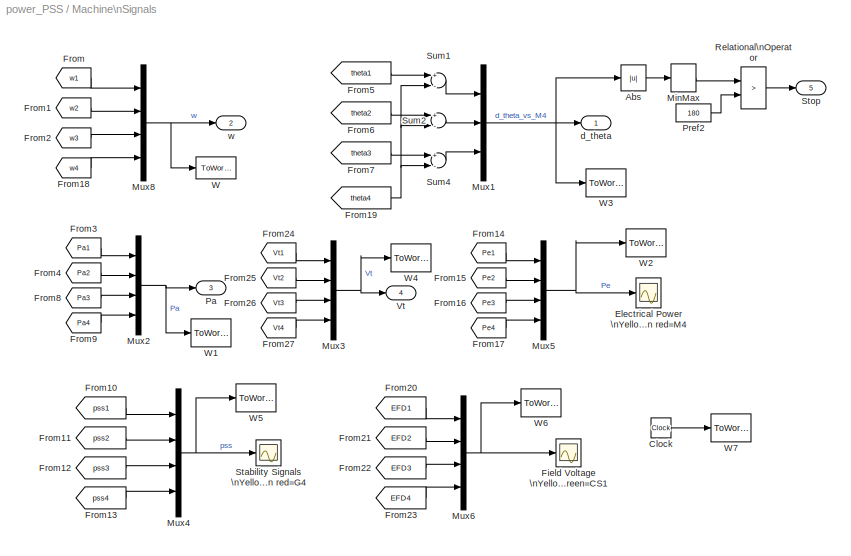
BLOCK [SubSystem] Machine\nSignals
  MinAlgLoopOccurrences = off
  Ports = [0, 5]
  RTWSystemCode = Auto
  TreatAsAtomicUnit = off
BLOCK [Abs] Machine\nSignals/Abs
BLOCK [Clock] Machine\nSignals/Clock
  Decimation = 10
BLOCK [Scope] Machine\nSignals/Electrical Power \nYellow=M1 mag=M2 cyan=M3\n red=M4 
  DataFormat = StructureWithTime
  LimitDataPoints = off
  NumInputPorts = 1
  Ports = [1]
  SaveName = ScopeData1
  YMax = 1
  YMin = 0.3
BLOCK [Scope] Machine\nSignals/Field Voltage \nYellow=G1 mag=G2 cyan=G3\n red=G4 green=CS1
  DataFormat = StructureWithTime
  LimitDataPoints = off
  NumInputPorts = 1
  Ports = [1]
  SaveName = ScopeData4
  YMax = 1.96
  YMin = 1.845
BLOCK [From] Machine\nSignals/From
  CloseFcn = tagdialog Close
  DialogController = Simulink.DDGSource
  GotoTag = w1
BLOCK [From] Machine\nSignals/From1
  CloseFcn = tagdialog Close
  DialogController = Simulink.DDGSource
  GotoTag = w2
BLOCK [From] Machine\nSignals/From10
  CloseFcn = tagdialog Close
  DialogController = Simulink.DDGSource
  GotoTag = pss1
BLOCK [From] Machine\nSignals/From11
  CloseFcn = tagdialog Close
  DialogController = Simulink.DDGSource
  GotoTag = pss2
BLOCK [From] Machine\nSignals/From12
  CloseFcn = tagdialog Close
  DialogController = Simulink.DDGSource
  GotoTag = pss3
BLOCK [From] Machine\nSignals/From13
  CloseFcn = tagdialog Close
  DialogController = Simulink.DDGSource
  GotoTag = pss4
BLOCK [From] Machine\nSignals/From14
  CloseFcn = tagdialog Close
  DialogController = Simulink.DDGSource
  GotoTag = Pe1
BLOCK [From] Machine\nSignals/From15
  CloseFcn = tagdialog Close
  DialogController = Simulink.DDGSource
  GotoTag = Pe2
BLOCK [From] Machine\nSignals/From16
  CloseFcn = tagdialog Close
  DialogController = Simulink.DDGSource
  GotoTag = Pe3
BLOCK [From] Machine\nSignals/From17
  CloseFcn = tagdialog Close
  DialogController = Simulink.DDGSource
  GotoTag = Pe4
BLOCK [From] Machine\nSignals/From18
  CloseFcn = tagdialog Close
  DialogController = Simulink.DDGSource
  GotoTag = w4
BLOCK [From] Machine\nSignals/From19
  CloseFcn = tagdialog Close
  DialogController = Simulink.DDGSource
  GotoTag = theta4
BLOCK [From] Machine\nSignals/From2
  CloseFcn = tagdialog Close
  DialogController = Simulink.DDGSource
  GotoTag = w3
BLOCK [From] Machine\nSignals/From20
  CloseFcn = tagdialog Close
  DialogController = Simulink.DDGSource
  GotoTag = EFD1
BLOCK [From] Machine\nSignals/From21
  CloseFcn = tagdialog Close
  DialogController = Simulink.DDGSource
  GotoTag = EFD2
BLOCK [From] Machine\nSignals/From22
  CloseFcn = tagdialog Close
  DialogController = Simulink.DDGSource
  GotoTag = EFD3
BLOCK [From] Machine\nSignals/From23
  CloseFcn = tagdialog Close
  DialogController = Simulink.DDGSource
  GotoTag = EFD4
BLOCK [From] Machine\nSignals/From24
  CloseFcn = tagdialog Close
  DialogController = Simulink.DDGSource
  GotoTag = Vt1
BLOCK [From] Machine\nSignals/From25
  CloseFcn = tagdialog Close
  DialogController = Simulink.DDGSource
  GotoTag = Vt2
BLOCK [From] Machine\nSignals/From26
  CloseFcn = tagdialog Close
  DialogController = Simulink.DDGSource
  GotoTag = Vt3
BLOCK [From] Machine\nSignals/From27
  CloseFcn = tagdialog Close
  DialogController = Simulink.DDGSource
  GotoTag = Vt4
BLOCK [From] Machine\nSignals/From3
  CloseFcn = tagdialog Close
  DialogController = Simulink.DDGSource
  GotoTag = Pa1
BLOCK [From] Machine\nSignals/From4
  CloseFcn = tagdialog Close
  DialogController = Simulink.DDGSource
  GotoTag = Pa2
BLOCK [From] Machine\nSignals/From5
  CloseFcn = tagdialog Close
  DialogController = Simulink.DDGSource
  GotoTag = theta1
BLOCK [From] Machine\nSignals/From6
  CloseFcn = tagdialog Close
  DialogController = Simulink.DDGSource
  GotoTag = theta2
BLOCK [From] Machine\nSignals/From7
  CloseFcn = tagdialog Close
  DialogController = Simulink.DDGSource
  GotoTag = theta3
BLOCK [From] Machine\nSignals/From8
  CloseFcn = tagdialog Close
  DialogController = Simulink.DDGSource
  GotoTag = Pa3
BLOCK [From] Machine\nSignals/From9
  CloseFcn = tagdialog Close
  DialogController = Simulink.DDGSource
  GotoTag = Pa4
BLOCK [MinMax] Machine\nSignals/MinMax
  Function = max
  Ports = [1, 1]
BLOCK [Mux] Machine\nSignals/Mux1
  DisplayOption = bar
  Inputs = 3
  Ports = [3, 1]
BLOCK [Mux] Machine\nSignals/Mux2
  DisplayOption = bar
  Ports = [4, 1]
BLOCK [Mux] Machine\nSignals/Mux3
  DisplayOption = bar
  Ports = [4, 1]
BLOCK [Mux] Machine\nSignals/Mux4
  DisplayOption = bar
  Ports = [4, 1]
BLOCK [Mux] Machine\nSignals/Mux5
  DisplayOption = bar
  Ports = [4, 1]
BLOCK [Mux] Machine\nSignals/Mux6
  DisplayOption = bar
  Ports = [4, 1]
BLOCK [Mux] Machine\nSignals/Mux8
  DisplayOption = bar
  Ports = [4, 1]
BLOCK [Outport] Machine\nSignals/Pa
  IconDisplay = Port number
  Port = 3
BLOCK [Constant] Machine\nSignals/Pref2
  Value = 180
BLOCK [RelationalOperator] Machine\nSignals/Relational\nOperator
  Operator = >
BLOCK [Scope] Machine\nSignals/Stability Signals \nYellow=G1 mag=G2 cyan=G3\n red=G4 
  DataFormat = StructureWithTime
  LimitDataPoints = off
  NumInputPorts = 1
  Ports = [1]
  SaveName = ScopeData3
  YMax = 0.15
  YMin = -0.15
BLOCK [Outport] Machine\nSignals/Stop
  IconDisplay = Port number
  Port = 5
BLOCK [Sum] Machine\nSignals/Sum1
  Inputs = +-
  Ports = [2, 1]
BLOCK [Sum] Machine\nSignals/Sum2
  Inputs = +-
  Ports = [2, 1]
BLOCK [Sum] Machine\nSignals/Sum4
  Inputs = +-
  Ports = [2, 1]
BLOCK [Outport] Machine\nSignals/Vt
  IconDisplay = Port number
  Port = 4
BLOCK [ToWorkspace] Machine\nSignals/W
  MaxDataPoints = inf
  SampleTime = 1/60
  SaveFormat = Array
  VariableName = w
BLOCK [ToWorkspace] Machine\nSignals/W1
  MaxDataPoints = inf
  SampleTime = 1/60
  SaveFormat = Array
  VariableName = Pa
BLOCK [ToWorkspace] Machine\nSignals/W2
  MaxDataPoints = inf
  SampleTime = 1/60
  SaveFormat = Array
  VariableName = Pe
BLOCK [ToWorkspace] Machine\nSignals/W3
  MaxDataPoints = inf
  SampleTime = 1/60
  SaveFormat = Array
  VariableName = DTH
BLOCK [ToWorkspace] Machine\nSignals/W4
  MaxDataPoints = inf
  SampleTime = 1/60
  SaveFormat = Array
  VariableName = Vt
BLOCK [ToWorkspace] Machine\nSignals/W5
  MaxDataPoints = inf
  SampleTime = 1/60
  SaveFormat = Array
  VariableName = PSS
BLOCK [ToWorkspace] Machine\nSignals/W6
  MaxDataPoints = inf
  SampleTime = 1/60
  SaveFormat = Array
  VariableName = EFD
BLOCK [ToWorkspace] Machine\nSignals/W7
  MaxDataPoints = inf
  SampleTime = 1/60
  SaveFormat = Array
  VariableName = t
BLOCK [Outport] Machine\nSignals/d_theta
  IconDisplay = Port number
BLOCK [Outport] Machine\nSignals/w
  IconDisplay = Port number
  Port = 2
BLOCK [Scope] Machines
  DataFormat = StructureWithTime
  LimitDataPoints = off
  NumInputPorts = 4
  Ports = [4]
  SaveName = mach
  TimeRange = 10
  YMax = 130~1.005~0.2~1.175
  YMin = 0~0.994~-0.35~0.95
  ZoomMode = yonly
BLOCK [SubSystem] More Info
  MaskDisplay = disp('? : Double click here for more info')
  MaskIconFrame = off
  MaskIconOpaque = on
  MaskIconRotate = none
  MaskIconUnits = autoscale
  MinAlgLoopOccurrences = off
  OpenFcn = web(which('psbpss.html'))
  Ports = []
  RTWSystemCode = Auto
  TreatAsAtomicUnit = off
BLOCK [Constant] PSS model
BLOCK [SubSystem] Requirements
  Description = This block is used to popup errors and warnings if the\nControl System Toolbox is not installed.
  InitFcn = Toolboxes = ver;                                                                                  \ninstalledtoolboxes = {Toolboxes.Name};                                                            \nk = strcmp('Control System Toolbox',installedtoolboxes);                                          \nif ~any(k)                                                                                        \n...<+300ch>
  LoadFcn = Toolboxes = ver;                                                                                                                 \ninstalledtoolboxes = {Toolboxes.Name};                                                                                           \nk = strcmp('Control System Toolbox',installedtoolboxes);                                                                         \nif ~any...<+389ch>
  MaskDisplay = disp('This demo requires the Control System Toolbox')
  MaskIconFrame = off
  MaskIconOpaque = on
  MaskIconRotate = none
  MaskIconUnits = autoscale
  MinAlgLoopOccurrences = off
  OpenFcn = Toolboxes = ver;                                                                                                                                           \ninstalledtoolboxes = {Toolboxes.Name};                                                                                                                     \nk = strcmp('Control System Toolbox',installedtoolboxes);                              ...<+540ch>
  Ports = []
  RTWSystemCode = Auto
  TreatAsAtomicUnit = off
BLOCK [Stop] Stop simulation\n if loss of synchronism
BLOCK [SubSystem] SubSystem
  MaskDisplay = disp('Show Bode plot \\nof PSS')
  MaskIconFrame = on
  MaskIconOpaque = on
  MaskIconRotate = none
  MaskIconUnits = autoscale
  MinAlgLoopOccurrences = off
  OpenFcn = openfig('psbPSSbode.fig');
  Ports = []
  RTWSystemCode = Auto
  TreatAsAtomicUnit = off
BLOCK [SubSystem] SubSystem3
  MaskDisplay = disp('Show results: \\nStep on vref\\nof M1')
  MaskIconFrame = on
  MaskIconOpaque = on
  MaskIconRotate = none
  MaskIconUnits = autoscale
  MinAlgLoopOccurrences = off
  OpenFcn = openfig('psbPSSstep.fig');
  Ports = []
  RTWSystemCode = Auto
  TreatAsAtomicUnit = off
BLOCK [SubSystem] SubSystem4
  MaskDisplay = disp('Show results: \\n3-phase fault')
  MaskIconFrame = on
  MaskIconOpaque = on
  MaskIconRotate = none
  MaskIconUnits = autoscale
  MinAlgLoopOccurrences = off
  OpenFcn = openfig('psbPSSfault.fig');
  Ports = []
  RTWSystemCode = Auto
  TreatAsAtomicUnit = off
BLOCK [Scope] System
  DataFormat = StructureWithTime
  LimitDataPoints = off
  NumInputPorts = 2
  Ports = [2]
  SaveName = mach1
  TimeRange = 10
  YMax = 0.9675~401
  YMin = 0.9475~389
BLOCK [SubSystem] System\nData
  MinAlgLoopOccurrences = off
  Ports = [0, 2]
  RTWSystemCode = Auto
  TreatAsAtomicUnit = off
BLOCK [Gain] System\nData/->MW
  Gain = 1e-6
BLOCK [Gain] System\nData/->pu
  Gain = 1/(230e3/sqrt(3)*sqrt(2))
BLOCK [Reference] System\nData/3-Phase\nActive & Reactive Power\n(Phasor Type)  REF=powerlib_extras/Phasor\nLibrary/3-Phase\nActive & Reactive Power\n(Phasor Type)
  Ports = [2, 1]
  ShowPortLabels = on
  SourceBlock = powerlib_extras/Phasor\nLibrary/3-Phase\nActive & Reactive Power\n(Phasor Type)
  SourceType = 3-Phase Active & Reactive Power (Phasor Type)
BLOCK [ComplexToMagnitudeAngle] System\nData/Complex to\nMagnitude-Angle
  Output = Magnitude
  Ports = [1, 1]
BLOCK [ComplexToMagnitudeAngle] System\nData/Complex to\nMagnitude-Angle1
  Output = Magnitude
  Ports = [1, 1]
BLOCK [From] System\nData/From
  CloseFcn = tagdialog Close
  DialogController = Simulink.DDGSource
  GotoTag = Vabc_B1
BLOCK [From] System\nData/From1
  CloseFcn = tagdialog Close
  DialogController = Simulink.DDGSource
  GotoTag = Iabc_B1
BLOCK [From] System\nData/From2
  CloseFcn = tagdialog Close
  DialogController = Simulink.DDGSource
  GotoTag = Vabc_B2
BLOCK [From] System\nData/From3
  CloseFcn = tagdialog Close
  DialogController = Simulink.DDGSource
  GotoTag = Iabc_B2
BLOCK [Mux] System\nData/Mux
  DisplayOption = bar
  Inputs = 2
  Ports = [2, 1]
BLOCK [Outport] System\nData/P_B1->B2
  IconDisplay = Port number
  Port = 2
BLOCK [Selector] System\nData/Selector
  InputPortWidth = 2
  Ports = [1, 1]
BLOCK [Reference] System\nData/Sequence Analyzer\n(Phasor Type)  REF=powerlib_extras/Phasor\nLibrary/Sequence Analyzer\n(Phasor Type)
  Ports = [1, 2]
  ShowPortLabels = on
  SourceBlock = powerlib_extras/Phasor\nLibrary/Sequence Analyzer\n(Phasor Type)
  SourceType = Sequence Analyzer (Phasor Type)
  seq = Positive
BLOCK [Reference] System\nData/Sequence Analyzer\n(Phasor Type)1  REF=powerlib_extras/Phasor\nLibrary/Sequence Analyzer\n(Phasor Type)
  Ports = [1, 2]
  ShowPortLabels = on
  SourceBlock = powerlib_extras/Phasor\nLibrary/Sequence Analyzer\n(Phasor Type)
  SourceType = Sequence Analyzer (Phasor Type)
  seq = Positive
BLOCK [Terminator] System\nData/Terminator
BLOCK [Terminator] System\nData/Terminator1
BLOCK [Terminator] System\nData/Terminator2
BLOCK [Scope] System\nData/Vabc_B1
  DataFormat = StructureWithTime
  LimitDataPoints = off
  NumInputPorts = 1
  Ports = [1]
  SaveName = mach2
  TimeRange = 10
  YMax = 90
  YMin = 20
BLOCK [Scope] System\nData/Vabc_B2
  DataFormat = StructureWithTime
  LimitDataPoints = off
  NumInputPorts = 1
  Ports = [1]
  SaveName = mach3
  TimeRange = 10
  YMax = 90
  YMin = 20
BLOCK [Outport] System\nData/Vps
  IconDisplay = Port number
BLOCK [ToWorkspace] System\nData/W2
  MaxDataPoints = inf
  SampleTime = 1/60
  SaveFormat = Array
  VariableName = P
BLOCK [Reference] powergui  REF=powerlib/powergui
  DisplayStyle = 1
  Frange = logspace(0,3,50)
  FreqAxis = off
  MaxFrequency = 1000
  Ports = []
  Priority = 2
  RmsSteady = 1
  ShowPortLabels = on
  SourceBlock = powerlib/powergui
  SourceType = PSB option menu block
  StartTime = 0.0
  Ts = 0
  Xlog = off
  Ylog = off
  ZoomFFT = on
  cycles = 1
  display = off
  echomessages = on
  frequency = 60
  frequencyindice = 1
  frequencyindicesteady = 1
  fundamental = 60
  methode = on
  save = off
  variable = ZData
ANNOTATION (root): ---->
ANNOTATION (root): 0 (No PSS)\n1 (MB-PSS)\n2 (Delta w PSS from Kundur)\n3 (Delta Pa PSS)
ANNOTATION (root): 413 MW
ANNOTATION (root): Comparison of three Power System Stabilizer (PSS)\nusing Kundur's Four-Machine Two-Area Test System
ANNOTATION (root): Select a specific PSS model\nby typing:
ANNOTATION (root): yellow=M1, \nmagenta=M2,\ncyan=M3, \nred=M4
ANNOTATION Area 1: 0 = No PSS\n1 = MB-PSS
ANNOTATION Area 1: 2 = Delta w (Kundur)
ANNOTATION Area 1: 3 = Delta Pa
ANNOTATION Area 1: ==> to Bus B1
ANNOTATION Area 1: Area 1
ANNOTATION Area 1/M1: Turbine &\nRegulators: MACHINE 1
ANNOTATION Area 1/M2: Turbine &\nRegulators: MACHINE 2
ANNOTATION Area 2: 0 = No PSS\n1 = MB-PSS
ANNOTATION Area 2: 2 = Delta w (Kundur)
ANNOTATION Area 2: 3 = Delta Pa
ANNOTATION Area 2: ==> to Bus B2
ANNOTATION Area 2: Area 2
ANNOTATION Area 2/M3: Turbine &\nRegulators: MACHINE 3
ANNOTATION Area 2/M4: Turbine &\nRegulators: MACHINE 4
NET Area 1/From:1 -> Area 1/M1: Turbine &\nRegulators:4, Area 1/M2: Turbine &\nRegulators:4
LINE Area 1/M1 900 MVA:1 -> Area 1/M1: Turbine &\nRegulators:1
LINE Area 1/M1: Turbine &\nRegulators/Complex to\nMagnitude-Angle:1 -> Area 1/M1: Turbine &\nRegulators/Goto1:1
LINE Area 1/M1: Turbine &\nRegulators/Delta Pa PSS :1 -> Area 1/M1: Turbine &\nRegulators/Multiport\nSwitch:5
LINE Area 1/M1: Turbine &\nRegulators/Delta w PSS\n(Kundur) :1 -> Area 1/M1: Turbine &\nRegulators/Multiport\nSwitch:4
NET Area 1/M1: Turbine &\nRegulators/Demux:1 -> Area 1/M1: Turbine &\nRegulators/EXCITATION:2, Area 1/M1: Turbine &\nRegulators/Real-Imag to\nComplex:1
NET Area 1/M1: Turbine &\nRegulators/Demux:2 -> Area 1/M1: Turbine &\nRegulators/EXCITATION:3, Area 1/M1: Turbine &\nRegulators/Real-Imag to\nComplex:2
NET Area 1/M1: Turbine &\nRegulators/EXCITATION:1 -> Area 1/M1: Turbine &\nRegulators/Goto5:1, Area 1/M1: Turbine &\nRegulators/Vf:1
LINE Area 1/M1: Turbine &\nRegulators/MB-PSS :1 -> Area 1/M1: Turbine &\nRegulators/Multiport\nSwitch:3
LINE Area 1/M1: Turbine &\nRegulators/Machine 1\nMeasurement\nDemux:1 -> Area 1/M1: Turbine &\nRegulators/Demux:1
LINE Area 1/M1: Turbine &\nRegulators/Machine 1\nMeasurement\nDemux:2 -> Area 1/M1: Turbine &\nRegulators/STG:4
NET Area 1/M1: Turbine &\nRegulators/Machine 1\nMeasurement\nDemux:3 -> Area 1/M1: Turbine &\nRegulators/Goto2:1, Area 1/M1: Turbine &\nRegulators/STG:3
NET Area 1/M1: Turbine &\nRegulators/Machine 1\nMeasurement\nDemux:4 -> Area 1/M1: Turbine &\nRegulators/Goto6:1, Area 1/M1: Turbine &\nRegulators/Sum2:1
NET Area 1/M1: Turbine &\nRegulators/Machine 1\nMeasurement\nDemux:5 -> Area 1/M1: Turbine &\nRegulators/Delta w PSS\n(Kundur) :1, Area 1/M1: Turbine &\nRegulators/MB-PSS :1
LINE Area 1/M1: Turbine &\nRegulators/Machine 1\nMeasurement\nDemux:6 -> Area 1/M1: Turbine &\nRegulators/Goto:1
NET Area 1/M1: Turbine &\nRegulators/Multiport\nSwitch:1 -> Area 1/M1: Turbine &\nRegulators/EXCITATION:4, Area 1/M1: Turbine &\nRegulators/Goto4:1
LINE Area 1/M1: Turbine &\nRegulators/PSS model1:1 -> Area 1/M1: Turbine &\nRegulators/Multiport\nSwitch:2
LINE Area 1/M1: Turbine &\nRegulators/PSS model2:1 -> Area 1/M1: Turbine &\nRegulators/Sum1:2
LINE Area 1/M1: Turbine &\nRegulators/PSS:1 -> Area 1/M1: Turbine &\nRegulators/Sum1:1
LINE Area 1/M1: Turbine &\nRegulators/Pref:1 -> Area 1/M1: Turbine &\nRegulators/STG:2
LINE Area 1/M1: Turbine &\nRegulators/Real-Imag to\nComplex:1 -> Area 1/M1: Turbine &\nRegulators/Complex to\nMagnitude-Angle:1
LINE Area 1/M1: Turbine &\nRegulators/STG:1 -> Area 1/M1: Turbine &\nRegulators/Terminator2:1
LINE Area 1/M1: Turbine &\nRegulators/STG:2 -> Area 1/M1: Turbine &\nRegulators/Terminator1:1
LINE Area 1/M1: Turbine &\nRegulators/STG:3 -> Area 1/M1: Turbine &\nRegulators/Terminator:1
NET Area 1/M1: Turbine &\nRegulators/STG:4 -> Area 1/M1: Turbine &\nRegulators/Pm:1, Area 1/M1: Turbine &\nRegulators/Sum2:2
LINE Area 1/M1: Turbine &\nRegulators/Sum1:1 -> Area 1/M1: Turbine &\nRegulators/Multiport\nSwitch:1
NET Area 1/M1: Turbine &\nRegulators/Sum2:1 -> Area 1/M1: Turbine &\nRegulators/Delta Pa PSS :1, Area 1/M1: Turbine &\nRegulators/Goto3:1
LINE Area 1/M1: Turbine &\nRegulators/Vref:1 -> Area 1/M1: Turbine &\nRegulators/EXCITATION:1
LINE Area 1/M1: Turbine &\nRegulators/m:1 -> Area 1/M1: Turbine &\nRegulators/Machine 1\nMeasurement\nDemux:1
LINE Area 1/M1: Turbine &\nRegulators/wref:1 -> Area 1/M1: Turbine &\nRegulators/STG:1
LINE Area 1/M1: Turbine &\nRegulators:1 -> Area 1/M1 900 MVA:1
LINE Area 1/M1: Turbine &\nRegulators:2 -> Area 1/M1 900 MVA:2
LINE Area 1/M2 900 MVA:1 -> Area 1/M2: Turbine &\nRegulators:1
LINE Area 1/M2: Turbine &\nRegulators/Complex to\nMagnitude-Angle:1 -> Area 1/M2: Turbine &\nRegulators/Goto1:1
LINE Area 1/M2: Turbine &\nRegulators/Delta Pa PSS :1 -> Area 1/M2: Turbine &\nRegulators/Multiport\nSwitch:5
LINE Area 1/M2: Turbine &\nRegulators/Delta w PSS\n(Kundur) :1 -> Area 1/M2: Turbine &\nRegulators/Multiport\nSwitch:4
NET Area 1/M2: Turbine &\nRegulators/Demux:1 -> Area 1/M2: Turbine &\nRegulators/EXCITATION:2, Area 1/M2: Turbine &\nRegulators/Real-Imag to\nComplex:1
NET Area 1/M2: Turbine &\nRegulators/Demux:2 -> Area 1/M2: Turbine &\nRegulators/EXCITATION:3, Area 1/M2: Turbine &\nRegulators/Real-Imag to\nComplex:2
NET Area 1/M2: Turbine &\nRegulators/EXCITATION:1 -> Area 1/M2: Turbine &\nRegulators/Goto5:1, Area 1/M2: Turbine &\nRegulators/Vf:1
LINE Area 1/M2: Turbine &\nRegulators/MB-PSS :1 -> Area 1/M2: Turbine &\nRegulators/Multiport\nSwitch:3
LINE Area 1/M2: Turbine &\nRegulators/Machine 2\nMeasurement\nDemux:1 -> Area 1/M2: Turbine &\nRegulators/Demux:1
LINE Area 1/M2: Turbine &\nRegulators/Machine 2\nMeasurement\nDemux:2 -> Area 1/M2: Turbine &\nRegulators/STG:4
NET Area 1/M2: Turbine &\nRegulators/Machine 2\nMeasurement\nDemux:3 -> Area 1/M2: Turbine &\nRegulators/Goto2:1, Area 1/M2: Turbine &\nRegulators/STG:3
NET Area 1/M2: Turbine &\nRegulators/Machine 2\nMeasurement\nDemux:4 -> Area 1/M2: Turbine &\nRegulators/Goto6:1, Area 1/M2: Turbine &\nRegulators/Sum2:1
NET Area 1/M2: Turbine &\nRegulators/Machine 2\nMeasurement\nDemux:5 -> Area 1/M2: Turbine &\nRegulators/Delta w PSS\n(Kundur) :1, Area 1/M2: Turbine &\nRegulators/MB-PSS :1
LINE Area 1/M2: Turbine &\nRegulators/Machine 2\nMeasurement\nDemux:6 -> Area 1/M2: Turbine &\nRegulators/Goto:1
NET Area 1/M2: Turbine &\nRegulators/Multiport\nSwitch:1 -> Area 1/M2: Turbine &\nRegulators/EXCITATION:4, Area 1/M2: Turbine &\nRegulators/Goto4:1
LINE Area 1/M2: Turbine &\nRegulators/PSS model1:1 -> Area 1/M2: Turbine &\nRegulators/Multiport\nSwitch:2
LINE Area 1/M2: Turbine &\nRegulators/PSS model2:1 -> Area 1/M2: Turbine &\nRegulators/Sum1:2
LINE Area 1/M2: Turbine &\nRegulators/PSS:1 -> Area 1/M2: Turbine &\nRegulators/Sum1:1
LINE Area 1/M2: Turbine &\nRegulators/Pref:1 -> Area 1/M2: Turbine &\nRegulators/STG:2
LINE Area 1/M2: Turbine &\nRegulators/Real-Imag to\nComplex:1 -> Area 1/M2: Turbine &\nRegulators/Complex to\nMagnitude-Angle:1
LINE Area 1/M2: Turbine &\nRegulators/STG:1 -> Area 1/M2: Turbine &\nRegulators/Terminator:1
LINE Area 1/M2: Turbine &\nRegulators/STG:2 -> Area 1/M2: Turbine &\nRegulators/Terminator1:1
LINE Area 1/M2: Turbine &\nRegulators/STG:3 -> Area 1/M2: Turbine &\nRegulators/Terminator2:1
NET Area 1/M2: Turbine &\nRegulators/STG:4 -> Area 1/M2: Turbine &\nRegulators/Pm:1, Area 1/M2: Turbine &\nRegulators/Sum2:2
LINE Area 1/M2: Turbine &\nRegulators/Sum1:1 -> Area 1/M2: Turbine &\nRegulators/Multiport\nSwitch:1
NET Area 1/M2: Turbine &\nRegulators/Sum2:1 -> Area 1/M2: Turbine &\nRegulators/Delta Pa PSS :1, Area 1/M2: Turbine &\nRegulators/Goto3:1
LINE Area 1/M2: Turbine &\nRegulators/Vref:1 -> Area 1/M2: Turbine &\nRegulators/EXCITATION:1
LINE Area 1/M2: Turbine &\nRegulators/m:1 -> Area 1/M2: Turbine &\nRegulators/Machine 2\nMeasurement\nDemux:1
LINE Area 1/M2: Turbine &\nRegulators/wref:1 -> Area 1/M2: Turbine &\nRegulators/STG:1
LINE Area 1/M2: Turbine &\nRegulators:1 -> Area 1/M2 900 MVA:1
LINE Area 1/M2: Turbine &\nRegulators:2 -> Area 1/M2 900 MVA:2
LINE Area 1/Pref1:1 -> Area 1/M1: Turbine &\nRegulators:2
LINE Area 1/Pref2:1 -> Area 1/M2: Turbine &\nRegulators:2
LINE Area 1/Switch:1 -> Area 1/M1: Turbine &\nRegulators:3
LINE Area 1/Timer:1 -> Area 1/Switch:2
LINE Area 1/Vref1 :1 -> Area 1/Switch:1
LINE Area 1/Vref1:1 -> Area 1/Switch:3
LINE Area 1/Vref2:1 -> Area 1/M2: Turbine &\nRegulators:3
NET Area 2/From:1 -> Area 2/M3: Turbine &\nRegulators:4, Area 2/M4: Turbine &\nRegulators:4
LINE Area 2/M3 900 MVA:1 -> Area 2/M3: Turbine &\nRegulators:1
LINE Area 2/M3: Turbine &\nRegulators/Complex to\nMagnitude-Angle:1 -> Area 2/M3: Turbine &\nRegulators/Goto1:1
LINE Area 2/M3: Turbine &\nRegulators/Delta Pa PSS :1 -> Area 2/M3: Turbine &\nRegulators/Multiport\nSwitch:5
LINE Area 2/M3: Turbine &\nRegulators/Delta w PSS\n(Kundur) :1 -> Area 2/M3: Turbine &\nRegulators/Multiport\nSwitch:4
NET Area 2/M3: Turbine &\nRegulators/Demux:1 -> Area 2/M3: Turbine &\nRegulators/EXCITATION:2, Area 2/M3: Turbine &\nRegulators/Real-Imag to\nComplex:1
NET Area 2/M3: Turbine &\nRegulators/Demux:2 -> Area 2/M3: Turbine &\nRegulators/EXCITATION:3, Area 2/M3: Turbine &\nRegulators/Real-Imag to\nComplex:2
NET Area 2/M3: Turbine &\nRegulators/EXCITATION:1 -> Area 2/M3: Turbine &\nRegulators/Goto5:1, Area 2/M3: Turbine &\nRegulators/Vf:1
LINE Area 2/M3: Turbine &\nRegulators/MB-PSS :1 -> Area 2/M3: Turbine &\nRegulators/Multiport\nSwitch:3
LINE Area 2/M3: Turbine &\nRegulators/Machine 3\nMeasurement\nDemux:1 -> Area 2/M3: Turbine &\nRegulators/Demux:1
LINE Area 2/M3: Turbine &\nRegulators/Machine 3\nMeasurement\nDemux:2 -> Area 2/M3: Turbine &\nRegulators/STG:4
NET Area 2/M3: Turbine &\nRegulators/Machine 3\nMeasurement\nDemux:3 -> Area 2/M3: Turbine &\nRegulators/Goto2:1, Area 2/M3: Turbine &\nRegulators/STG:3
NET Area 2/M3: Turbine &\nRegulators/Machine 3\nMeasurement\nDemux:4 -> Area 2/M3: Turbine &\nRegulators/Goto6:1, Area 2/M3: Turbine &\nRegulators/Sum2:1
NET Area 2/M3: Turbine &\nRegulators/Machine 3\nMeasurement\nDemux:5 -> Area 2/M3: Turbine &\nRegulators/Delta w PSS\n(Kundur) :1, Area 2/M3: Turbine &\nRegulators/MB-PSS :1
LINE Area 2/M3: Turbine &\nRegulators/Machine 3\nMeasurement\nDemux:6 -> Area 2/M3: Turbine &\nRegulators/Goto:1
NET Area 2/M3: Turbine &\nRegulators/Multiport\nSwitch:1 -> Area 2/M3: Turbine &\nRegulators/EXCITATION:4, Area 2/M3: Turbine &\nRegulators/Goto4:1
LINE Area 2/M3: Turbine &\nRegulators/PSS model1:1 -> Area 2/M3: Turbine &\nRegulators/Multiport\nSwitch:2
LINE Area 2/M3: Turbine &\nRegulators/PSS model2:1 -> Area 2/M3: Turbine &\nRegulators/Sum1:2
LINE Area 2/M3: Turbine &\nRegulators/PSS:1 -> Area 2/M3: Turbine &\nRegulators/Sum1:1
LINE Area 2/M3: Turbine &\nRegulators/Pref:1 -> Area 2/M3: Turbine &\nRegulators/STG:2
LINE Area 2/M3: Turbine &\nRegulators/Real-Imag to\nComplex:1 -> Area 2/M3: Turbine &\nRegulators/Complex to\nMagnitude-Angle:1
LINE Area 2/M3: Turbine &\nRegulators/STG:1 -> Area 2/M3: Turbine &\nRegulators/Terminator:1
LINE Area 2/M3: Turbine &\nRegulators/STG:2 -> Area 2/M3: Turbine &\nRegulators/Terminator1:1
LINE Area 2/M3: Turbine &\nRegulators/STG:3 -> Area 2/M3: Turbine &\nRegulators/Terminator2:1
NET Area 2/M3: Turbine &\nRegulators/STG:4 -> Area 2/M3: Turbine &\nRegulators/Pm:1, Area 2/M3: Turbine &\nRegulators/Sum2:2
LINE Area 2/M3: Turbine &\nRegulators/Sum1:1 -> Area 2/M3: Turbine &\nRegulators/Multiport\nSwitch:1
NET Area 2/M3: Turbine &\nRegulators/Sum2:1 -> Area 2/M3: Turbine &\nRegulators/Delta Pa PSS :1, Area 2/M3: Turbine &\nRegulators/Goto3:1
LINE Area 2/M3: Turbine &\nRegulators/Vref:1 -> Area 2/M3: Turbine &\nRegulators/EXCITATION:1
LINE Area 2/M3: Turbine &\nRegulators/m:1 -> Area 2/M3: Turbine &\nRegulators/Machine 3\nMeasurement\nDemux:1
LINE Area 2/M3: Turbine &\nRegulators/wref:1 -> Area 2/M3: Turbine &\nRegulators/STG:1
LINE Area 2/M3: Turbine &\nRegulators:1 -> Area 2/M3 900 MVA:1
LINE Area 2/M3: Turbine &\nRegulators:2 -> Area 2/M3 900 MVA:2
LINE Area 2/M4 900 MVA:1 -> Area 2/M4: Turbine &\nRegulators:1
LINE Area 2/M4: Turbine &\nRegulators/Complex to\nMagnitude-Angle:1 -> Area 2/M4: Turbine &\nRegulators/Goto1:1
LINE Area 2/M4: Turbine &\nRegulators/Delta Pa PSS :1 -> Area 2/M4: Turbine &\nRegulators/Multiport\nSwitch:5
LINE Area 2/M4: Turbine &\nRegulators/Delta w PSS\n(Kundur) :1 -> Area 2/M4: Turbine &\nRegulators/Multiport\nSwitch:4
NET Area 2/M4: Turbine &\nRegulators/Demux:1 -> Area 2/M4: Turbine &\nRegulators/EXCITATION:2, Area 2/M4: Turbine &\nRegulators/Real-Imag to\nComplex:1
NET Area 2/M4: Turbine &\nRegulators/Demux:2 -> Area 2/M4: Turbine &\nRegulators/EXCITATION:3, Area 2/M4: Turbine &\nRegulators/Real-Imag to\nComplex:2
NET Area 2/M4: Turbine &\nRegulators/EXCITATION:1 -> Area 2/M4: Turbine &\nRegulators/Goto5:1, Area 2/M4: Turbine &\nRegulators/Vf:1
LINE Area 2/M4: Turbine &\nRegulators/MB-PSS :1 -> Area 2/M4: Turbine &\nRegulators/Multiport\nSwitch:3
LINE Area 2/M4: Turbine &\nRegulators/Machine 4\nMeasurement\nDemux:1 -> Area 2/M4: Turbine &\nRegulators/Demux:1
LINE Area 2/M4: Turbine &\nRegulators/Machine 4\nMeasurement\nDemux:2 -> Area 2/M4: Turbine &\nRegulators/STG:4
NET Area 2/M4: Turbine &\nRegulators/Machine 4\nMeasurement\nDemux:3 -> Area 2/M4: Turbine &\nRegulators/Goto2:1, Area 2/M4: Turbine &\nRegulators/STG:3
NET Area 2/M4: Turbine &\nRegulators/Machine 4\nMeasurement\nDemux:4 -> Area 2/M4: Turbine &\nRegulators/Goto6:1, Area 2/M4: Turbine &\nRegulators/Sum2:1
NET Area 2/M4: Turbine &\nRegulators/Machine 4\nMeasurement\nDemux:5 -> Area 2/M4: Turbine &\nRegulators/Delta w PSS\n(Kundur) :1, Area 2/M4: Turbine &\nRegulators/MB-PSS :1
LINE Area 2/M4: Turbine &\nRegulators/Machine 4\nMeasurement\nDemux:6 -> Area 2/M4: Turbine &\nRegulators/Goto:1
NET Area 2/M4: Turbine &\nRegulators/Multiport\nSwitch:1 -> Area 2/M4: Turbine &\nRegulators/EXCITATION:4, Area 2/M4: Turbine &\nRegulators/Goto4:1
LINE Area 2/M4: Turbine &\nRegulators/PSS model1:1 -> Area 2/M4: Turbine &\nRegulators/Multiport\nSwitch:2
LINE Area 2/M4: Turbine &\nRegulators/PSS model2:1 -> Area 2/M4: Turbine &\nRegulators/Sum1:2
LINE Area 2/M4: Turbine &\nRegulators/PSS:1 -> Area 2/M4: Turbine &\nRegulators/Sum1:1
LINE Area 2/M4: Turbine &\nRegulators/Pref:1 -> Area 2/M4: Turbine &\nRegulators/STG:2
LINE Area 2/M4: Turbine &\nRegulators/Real-Imag to\nComplex:1 -> Area 2/M4: Turbine &\nRegulators/Complex to\nMagnitude-Angle:1
LINE Area 2/M4: Turbine &\nRegulators/STG:1 -> Area 2/M4: Turbine &\nRegulators/Terminator2:1
LINE Area 2/M4: Turbine &\nRegulators/STG:2 -> Area 2/M4: Turbine &\nRegulators/Terminator1:1
LINE Area 2/M4: Turbine &\nRegulators/STG:3 -> Area 2/M4: Turbine &\nRegulators/Terminator:1
NET Area 2/M4: Turbine &\nRegulators/STG:4 -> Area 2/M4: Turbine &\nRegulators/Pm:1, Area 2/M4: Turbine &\nRegulators/Sum2:2
LINE Area 2/M4: Turbine &\nRegulators/Sum1:1 -> Area 2/M4: Turbine &\nRegulators/Multiport\nSwitch:1
NET Area 2/M4: Turbine &\nRegulators/Sum2:1 -> Area 2/M4: Turbine &\nRegulators/Delta Pa PSS :1, Area 2/M4: Turbine &\nRegulators/Goto3:1
LINE Area 2/M4: Turbine &\nRegulators/Vref:1 -> Area 2/M4: Turbine &\nRegulators/EXCITATION:1
LINE Area 2/M4: Turbine &\nRegulators/m:1 -> Area 2/M4: Turbine &\nRegulators/Machine 4\nMeasurement\nDemux:1
LINE Area 2/M4: Turbine &\nRegulators/wref:1 -> Area 2/M4: Turbine &\nRegulators/STG:1
LINE Area 2/M4: Turbine &\nRegulators:1 -> Area 2/M4 900 MVA:1
LINE Area 2/M4: Turbine &\nRegulators:2 -> Area 2/M4 900 MVA:2
LINE Area 2/Pref3:1 -> Area 2/M3: Turbine &\nRegulators:2
LINE Area 2/Pref4:1 -> Area 2/M4: Turbine &\nRegulators:2
LINE Area 2/Vref3:1 -> Area 2/M3: Turbine &\nRegulators:3
LINE Area 2/Vref4:1 -> Area 2/M4: Turbine &\nRegulators:3
LINE Machine\nSignals/Abs:1 -> Machine\nSignals/MinMax:1
LINE Machine\nSignals/Clock:1 -> Machine\nSignals/W7:1
LINE Machine\nSignals/From10:1 -> Machine\nSignals/Mux4:1
LINE Machine\nSignals/From11:1 -> Machine\nSignals/Mux4:2
LINE Machine\nSignals/From12:1 -> Machine\nSignals/Mux4:3
LINE Machine\nSignals/From13:1 -> Machine\nSignals/Mux4:4
LINE Machine\nSignals/From14:1 -> Machine\nSignals/Mux5:1
LINE Machine\nSignals/From15:1 -> Machine\nSignals/Mux5:2
LINE Machine\nSignals/From16:1 -> Machine\nSignals/Mux5:3
LINE Machine\nSignals/From17:1 -> Machine\nSignals/Mux5:4
LINE Machine\nSignals/From18:1 -> Machine\nSignals/Mux8:4
NET Machine\nSignals/From19:1 -> Machine\nSignals/Sum1:2, Machine\nSignals/Sum2:2, Machine\nSignals/Sum4:2
LINE Machine\nSignals/From1:1 -> Machine\nSignals/Mux8:2
LINE Machine\nSignals/From20:1 -> Machine\nSignals/Mux6:1
LINE Machine\nSignals/From21:1 -> Machine\nSignals/Mux6:2
LINE Machine\nSignals/From22:1 -> Machine\nSignals/Mux6:3
LINE Machine\nSignals/From23:1 -> Machine\nSignals/Mux6:4
LINE Machine\nSignals/From24:1 -> Machine\nSignals/Mux3:1
LINE Machine\nSignals/From25:1 -> Machine\nSignals/Mux3:2
LINE Machine\nSignals/From26:1 -> Machine\nSignals/Mux3:3
LINE Machine\nSignals/From27:1 -> Machine\nSignals/Mux3:4
LINE Machine\nSignals/From2:1 -> Machine\nSignals/Mux8:3
LINE Machine\nSignals/From3:1 -> Machine\nSignals/Mux2:1
LINE Machine\nSignals/From4:1 -> Machine\nSignals/Mux2:2
LINE Machine\nSignals/From5:1 -> Machine\nSignals/Sum1:1
LINE Machine\nSignals/From6:1 -> Machine\nSignals/Sum2:1
LINE Machine\nSignals/From7:1 -> Machine\nSignals/Sum4:1
LINE Machine\nSignals/From8:1 -> Machine\nSignals/Mux2:3
LINE Machine\nSignals/From9:1 -> Machine\nSignals/Mux2:4
LINE Machine\nSignals/From:1 -> Machine\nSignals/Mux8:1
LINE Machine\nSignals/MinMax:1 -> Machine\nSignals/Relational\nOperator:1
NET Machine\nSignals/Mux1:1 -> Machine\nSignals/Abs:1, Machine\nSignals/W3:1, Machine\nSignals/d_theta:1
NET Machine\nSignals/Mux2:1 -> Machine\nSignals/Pa:1, Machine\nSignals/W1:1
NET Machine\nSignals/Mux3:1 -> Machine\nSignals/Vt:1, Machine\nSignals/W4:1
NET Machine\nSignals/Mux4:1 -> Machine\nSignals/Stability Signals \nYellow=G1 mag=G2 cyan=G3\n red=G4 :1, Machine\nSignals/W5:1
NET Machine\nSignals/Mux5:1 -> Machine\nSignals/Electrical Power \nYellow=M1 mag=M2 cyan=M3\n red=M4 :1, Machine\nSignals/W2:1
NET Machine\nSignals/Mux6:1 -> Machine\nSignals/Field Voltage \nYellow=G1 mag=G2 cyan=G3\n red=G4 green=CS1:1, Machine\nSignals/W6:1
NET Machine\nSignals/Mux8:1 -> Machine\nSignals/W:1, Machine\nSignals/w:1
LINE Machine\nSignals/Pref2:1 -> Machine\nSignals/Relational\nOperator:2
LINE Machine\nSignals/Relational\nOperator:1 -> Machine\nSignals/Stop:1
LINE Machine\nSignals/Sum1:1 -> Machine\nSignals/Mux1:1
LINE Machine\nSignals/Sum2:1 -> Machine\nSignals/Mux1:2
LINE Machine\nSignals/Sum4:1 -> Machine\nSignals/Mux1:3
LINE Machine\nSignals:1 -> Machines:1
LINE Machine\nSignals:2 -> Machines:2
LINE Machine\nSignals:3 -> Machines:3
LINE Machine\nSignals:4 -> Machines:4
LINE Machine\nSignals:5 -> Stop simulation\n if loss of synchronism:1
LINE PSS model:1 -> Goto:1
NET System\nData/->MW:1 -> System\nData/P_B1->B2:1, System\nData/W2:1
LINE System\nData/->pu:1 -> System\nData/Vps:1
LINE System\nData/3-Phase\nActive & Reactive Power\n(Phasor Type):1 -> System\nData/Selector:1
LINE System\nData/Complex to\nMagnitude-Angle1:1 -> System\nData/Vabc_B2:1
LINE System\nData/Complex to\nMagnitude-Angle:1 -> System\nData/Vabc_B1:1
LINE System\nData/From1:1 -> System\nData/3-Phase\nActive & Reactive Power\n(Phasor Type):2
NET System\nData/From2:1 -> System\nData/Complex to\nMagnitude-Angle1:1, System\nData/Sequence Analyzer\n(Phasor Type)1:1
LINE System\nData/From3:1 -> System\nData/Terminator:1
NET System\nData/From:1 -> System\nData/3-Phase\nActive & Reactive Power\n(Phasor Type):1, System\nData/Complex to\nMagnitude-Angle:1, System\nData/Sequence Analyzer\n(Phasor Type):1
LINE System\nData/Mux:1 -> System\nData/->pu:1
LINE System\nData/Selector:1 -> System\nData/->MW:1
LINE System\nData/Sequence Analyzer\n(Phasor Type)1:1 -> System\nData/Mux:2
LINE System\nData/Sequence Analyzer\n(Phasor Type)1:2 -> System\nData/Terminator2:1
LINE System\nData/Sequence Analyzer\n(Phasor Type):1 -> System\nData/Mux:1
LINE System\nData/Sequence Analyzer\n(Phasor Type):2 -> System\nData/Terminator1:1
LINE System\nData:1 -> System:1
LINE System\nData:2 -> System:2
PLINE  Brk2:LConn1 -- Line 1b\n(110 km):RConn1
PLINE  Brk2:LConn2 -- Line 1b\n(110 km):RConn2
PLINE  Brk2:LConn3 -- Line 1b\n(110 km):RConn3
PNET net1:  Brk2:RConn1 -- B2:LConn1 -- Line 2\n(220 km):RConn1
PNET net2:  Brk2:RConn2 -- B2:LConn2 -- Line 2\n(220 km):RConn2
PNET net3:  Brk2:RConn3 -- B2:LConn3 -- Line 2\n(220 km):RConn3
PNET net4: Area 1/ A:RConn1 -- Area 1/-200MVAR:LConn1 -- Area 1/10 km Area 1:RConn1 -- Area 1/967MW\n100MVAR\n-187MVAR:LConn1
PNET net5: Area 1/ B:RConn1 -- Area 1/-200MVAR:LConn2 -- Area 1/10 km Area 1:RConn2 -- Area 1/967MW\n100MVAR\n-187MVAR:LConn2
PNET net6: Area 1/ C:RConn1 -- Area 1/-200MVAR:LConn3 -- Area 1/10 km Area 1:RConn3 -- Area 1/967MW\n100MVAR\n-187MVAR:LConn3
PNET net7: Area 1/10 km Area 1:LConn1 -- Area 1/25km Area 1:RConn1 -- Area 1/T2: 900MVA \n20 kV//230 kV:RConn1
PNET net8: Area 1/10 km Area 1:LConn2 -- Area 1/25km Area 1:RConn2 -- Area 1/T2: 900MVA \n20 kV//230 kV:RConn2
PNET net9: Area 1/10 km Area 1:LConn3 -- Area 1/25km Area 1:RConn3 -- Area 1/T2: 900MVA \n20 kV//230 kV:RConn3
PLINE Area 1/25km Area 1:LConn1 -- Area 1/T1: 900MVA\n20 kV-230 kV:RConn1
PLINE Area 1/25km Area 1:LConn2 -- Area 1/T1: 900MVA\n20 kV-230 kV:RConn2
PLINE Area 1/25km Area 1:LConn3 -- Area 1/T1: 900MVA\n20 kV-230 kV:RConn3
PLINE Area 1/M1 900 MVA:RConn1 -- Area 1/T1: 900MVA\n20 kV-230 kV:LConn1
PLINE Area 1/M1 900 MVA:RConn2 -- Area 1/T1: 900MVA\n20 kV-230 kV:LConn2
PLINE Area 1/M1 900 MVA:RConn3 -- Area 1/T1: 900MVA\n20 kV-230 kV:LConn3
PLINE Area 1/M2 900 MVA:RConn1 -- Area 1/T2: 900MVA \n20 kV//230 kV:LConn1
PLINE Area 1/M2 900 MVA:RConn2 -- Area 1/T2: 900MVA \n20 kV//230 kV:LConn2
PLINE Area 1/M2 900 MVA:RConn3 -- Area 1/T2: 900MVA \n20 kV//230 kV:LConn3
PLINE Area 1:RConn1 -- B1:LConn1
PLINE Area 1:RConn2 -- B1:LConn2
PLINE Area 1:RConn3 -- B1:LConn3
PNET net10: Area 2/-350MVAR:LConn1 -- Area 2/10 km Area 2:RConn3 -- Area 2/1767MW\n100MVAR\n-187MVAR:LConn1 -- Area 2/C:RConn1
PNET net11: Area 2/-350MVAR:LConn2 -- Area 2/10 km Area 2:RConn2 -- Area 2/1767MW\n100MVAR\n-187MVAR:LConn2 -- Area 2/B:RConn1
PNET net12: Area 2/-350MVAR:LConn3 -- Area 2/10 km Area 2:RConn1 -- Area 2/1767MW\n100MVAR\n-187MVAR:LConn3 -- Area 2/A:RConn1
PNET net13: Area 2/10 km Area 2:LConn1 -- Area 2/25km Area 2:RConn1 -- Area 2/T4: 900MVA \n20 kV//230 kV:RConn1
PNET net14: Area 2/10 km Area 2:LConn2 -- Area 2/25km Area 2:RConn2 -- Area 2/T4: 900MVA \n20 kV//230 kV:RConn2
PNET net15: Area 2/10 km Area 2:LConn3 -- Area 2/25km Area 2:RConn3 -- Area 2/T4: 900MVA \n20 kV//230 kV:RConn3
PLINE Area 2/25km Area 2:LConn1 -- Area 2/T3: 900MVA\n20 kV-230 kV:RConn1
PLINE Area 2/25km Area 2:LConn2 -- Area 2/T3: 900MVA\n20 kV-230 kV:RConn2
PLINE Area 2/25km Area 2:LConn3 -- Area 2/T3: 900MVA\n20 kV-230 kV:RConn3
PLINE Area 2/M3 900 MVA:RConn1 -- Area 2/T3: 900MVA\n20 kV-230 kV:LConn1
PLINE Area 2/M3 900 MVA:RConn2 -- Area 2/T3: 900MVA\n20 kV-230 kV:LConn2
PLINE Area 2/M3 900 MVA:RConn3 -- Area 2/T3: 900MVA\n20 kV-230 kV:LConn3
PLINE Area 2/M4 900 MVA:RConn1 -- Area 2/T4: 900MVA \n20 kV//230 kV:LConn1
PLINE Area 2/M4 900 MVA:RConn2 -- Area 2/T4: 900MVA \n20 kV//230 kV:LConn2
PLINE Area 2/M4 900 MVA:RConn3 -- Area 2/T4: 900MVA \n20 kV//230 kV:LConn3
PLINE Area 2:LConn1 -- B2:RConn1
PLINE Area 2:LConn2 -- B2:RConn2
PLINE Area 2:LConn3 -- B2:RConn3
PNET net16: B1:RConn1 -- Brk1:LConn1 -- Line 2\n(220 km):LConn1
PNET net17: B1:RConn2 -- Brk1:LConn2 -- Line 2\n(220 km):LConn2
PNET net18: B1:RConn3 -- Brk1:LConn3 -- Line 2\n(220 km):LConn3
PLINE Brk1:RConn1 -- Line 1a\n(110 km):LConn1
PLINE Brk1:RConn2 -- Line 1a\n(110 km):LConn2
PLINE Brk1:RConn3 -- Line 1a\n(110 km):LConn3
PNET net19: Fault:LConn1 -- Line 1a\n(110 km):RConn1 -- Line 1b\n(110 km):LConn1
PNET net20: Fault:LConn2 -- Line 1a\n(110 km):RConn2 -- Line 1b\n(110 km):LConn2
PNET net21: Fault:LConn3 -- Line 1a\n(110 km):RConn3 -- Line 1b\n(110 km):LConn3
note: NET lines group one-source signal fan-out (src -> all destinations, sorted); 1:1 wires keep LINE; PNET lines group multi-terminal physical nets as a canonical sorted terminal list (undirected conserving connections); 2-terminal nets keep the pairwise PLINE form
